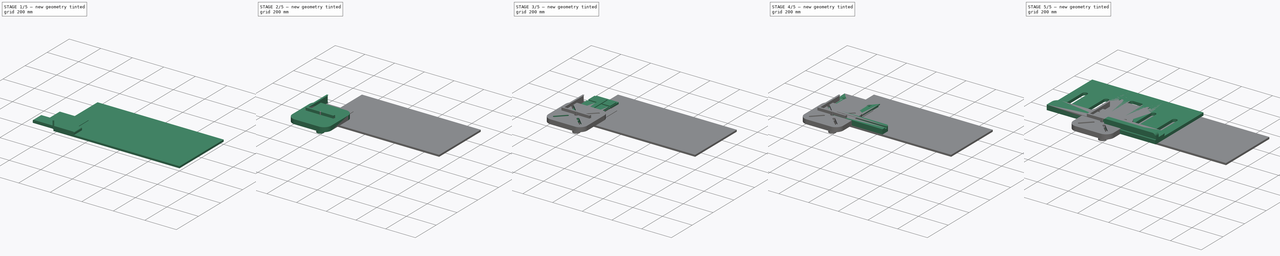
[diagram: build sequence overview — one tinted view per stage of 5, left to right]
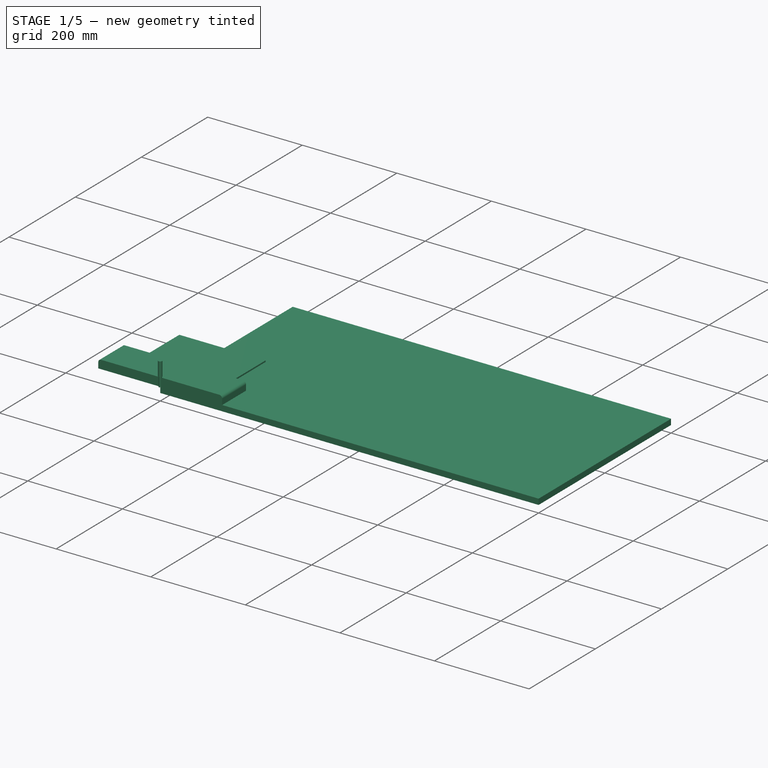
[diagram: stage 1 of 5 — iso view after this stage's code; geometry added in this stage tinted green]
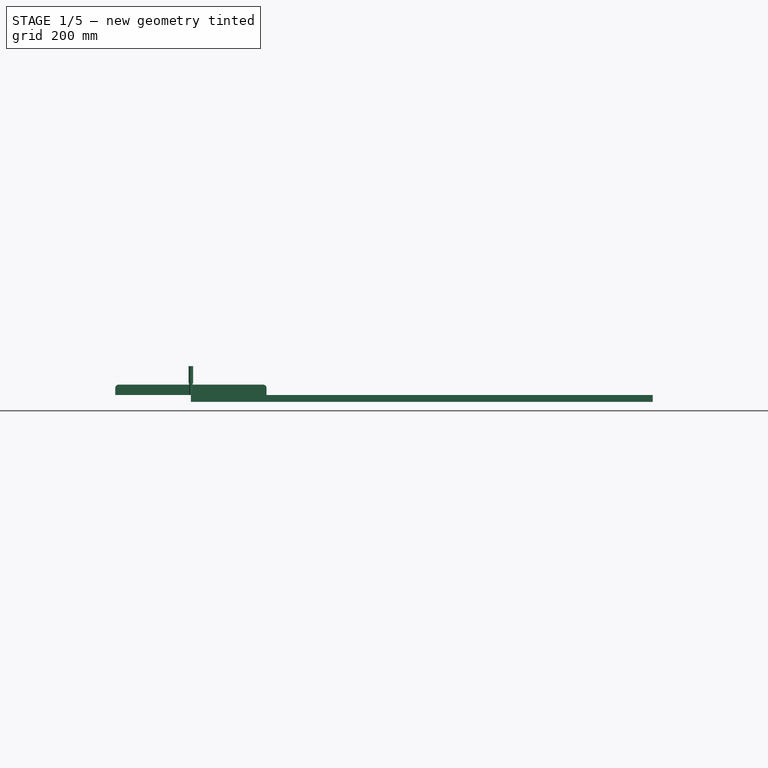
[diagram: stage 1 of 5 — front view after this stage's code; geometry added in this stage tinted green]
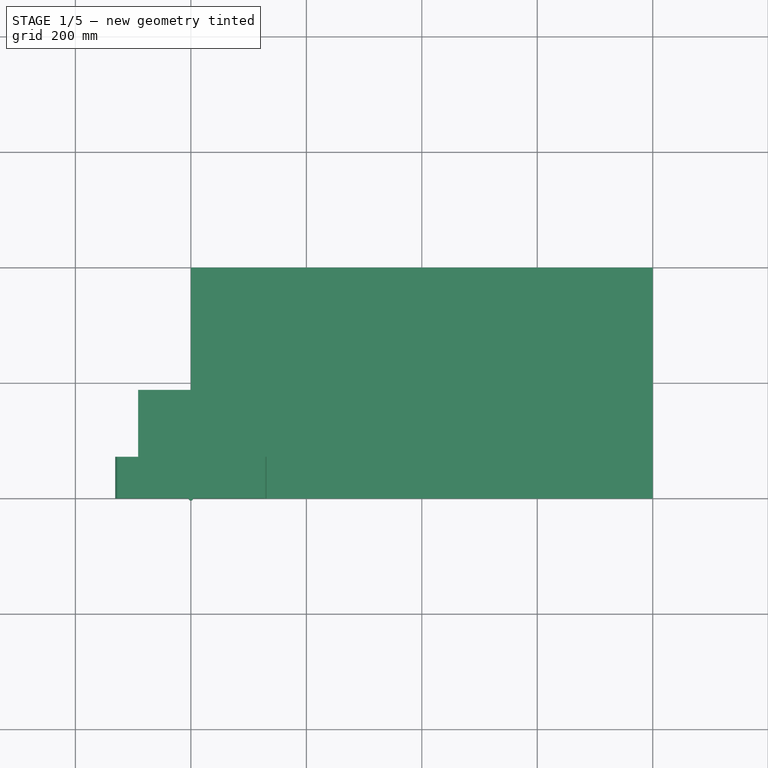
[diagram: stage 1 of 5 — top view after this stage's code; geometry added in this stage tinted green]
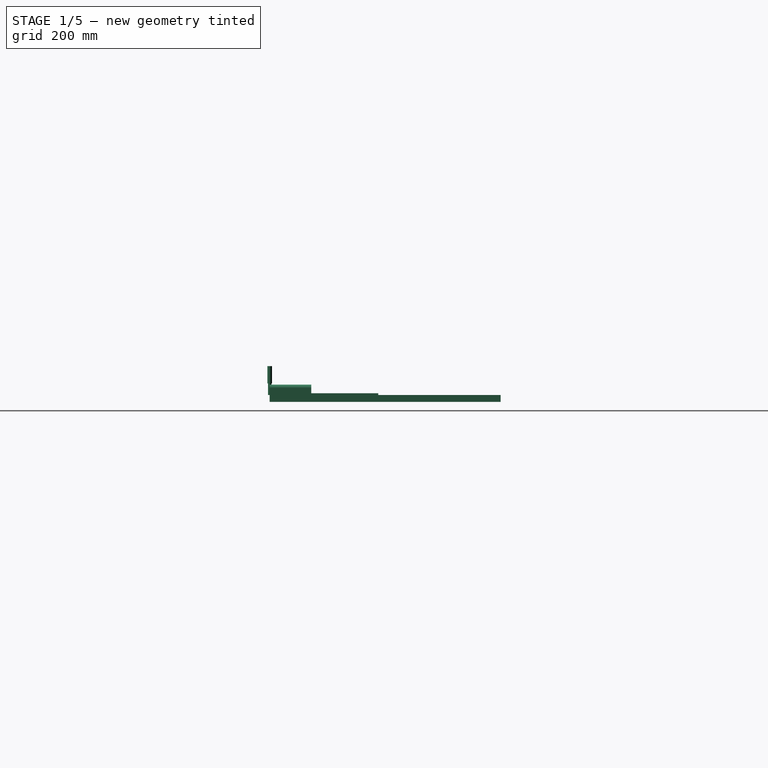
[diagram: stage 1 of 5 — right view after this stage's code; geometry added in this stage tinted green]
FCSTD DOCUMENT  (FreeCAD 0.22R36874 (Git))
Label: insert_drill_press_table
License: All rights reserved
LicenseURL: http://en.wikipedia.org/wiki/All_rights_reserved
objects: Sketcher::SketchObject×58, PartDesign::Pocket×35, PartDesign::Pad×21, PartDesign::Body×21, Path::FeaturePython×7, PartDesign::Mirrored×4, App::Part×4, PartDesign::FeatureBase×3, PartDesign::PolarPattern×3, Part::FeaturePython×3, App::DocumentObjectGroup×3, Spreadsheet::Sheet×1, PartDesign::Fillet×1, App::FeaturePython×1
note: 208 computed .brp shape members not serialized (recipe doc carries the construction recipe); baked Part::Feature solids carry a one-line shape summary decoded from their .brp

FEATURE [Sketcher::SketchObject] Sketch008
  AttachmentSupport = -> [XY_Plane004]
  FullyConstrained = true
  MapMode = 5
  expr: Constraints[12] = 3 * Spreadsheet.table_radius
  expr: Constraints[16] = Spreadsheet.insert_depth
  expr: Constraints[17] = Spreadsheet.insert_width
  sketch-geometry (8):
    g0: LineSegment StartX=-27 StartY=100 StartZ=0 EndX=27 EndY=100 EndZ=0
    g1: LineSegment StartX=45 StartY=82 StartZ=0 EndX=45 EndY=-82 EndZ=0
    g2: LineSegment StartX=27 StartY=-100 StartZ=0 EndX=-27 EndY=-100 EndZ=0
    g3: LineSegment StartX=-45 StartY=-82 StartZ=0 EndX=-45 EndY=82 EndZ=0
    g4: ArcOfCircle CenterX=-27 CenterY=-82 CenterZ=0 NormalX=0 NormalY=0 NormalZ=1 AngleXU=0 Radius=18 StartAngle=3.14159 EndAngle=4.71239
    g5: ArcOfCircle CenterX=27 CenterY=-82 CenterZ=0 NormalX=0 NormalY=0 NormalZ=1 AngleXU=0 Radius=18 StartAngle=4.71239 EndAngle=6.28319
    g6: ArcOfCircle CenterX=27 CenterY=82 CenterZ=0 NormalX=0 NormalY=0 NormalZ=1 AngleXU=0 Radius=18 StartAngle=0 EndAngle=1.5708
    g7: ArcOfCircle CenterX=-27 CenterY=82 CenterZ=0 NormalX=0 NormalY=0 NormalZ=1 AngleXU=0 Radius=18 StartAngle=1.5708 EndAngle=3.14159
  constraints (19):
    c: Horizontal(g0)
    c: Horizontal(g2)
    c: Vertical(g1)
    c: Vertical(g3)
    c: Tangent(g3,g4) = 1.5708
    c: Tangent(g2,g4) = 1.5708
    c: Tangent(g2,g5) = 1.5708
    c: Tangent(g1,g5) = 1.5708
    c: Tangent(g1,g6) = 1.5708
    c: Tangent(g0,g6) = 1.5708
    c: Tangent(g0,g7) = 1.5708
    c: Tangent(g3,g7) = 1.5708
    c: Radius(g7) = 18
    c: Equal(g7,g6)
    c: Equal(g6,g5)
    c: Equal(g5,g4)
    c: DistanceY(g2,g0) = 200
    c: DistanceX(g3,g1) = 90
    c: Symmetric(g3,g1,g-1)
FEATURE [PartDesign::Pad] Pad003
  Direction = (0,0,1)
  Length = 12
  Length2 = 10
  Profile = -> Sketch008
  ReferenceAxis = -> Sketch008 [N_Axis]
  Suppressed = false
  Type = 0
  expr: Length = Spreadsheet.ply_12
FEATURE [PartDesign::Body] Body014  label="iron_table_insert"
  Group = -> [Sketch044,Pad016,Sketch045,Pocket028,Sketch046,Pocket029]
  Origin = -> Origin018
  Placement = pos=(0,210,-90) rot=(1,0,0;3.14159rad)
  Tip = -> Pocket029
FEATURE [Sketcher::SketchObject] Sketch047
  AttachmentSupport = -> [XY_Plane020]
  FullyConstrained = true
  MapMode = 5
  expr: Constraints[10] = Spreadsheet.drawer_total_height
  expr: Constraints[9] = Spreadsheet.drawer_total_width - 2 * (Spreadsheet.ply_12 - Spreadsheet.ply_3)
  sketch-geometry (4):
    g0: LineSegment StartX=-91.3 StartY=48 StartZ=0 EndX=91.3 EndY=48 EndZ=0
    g1: LineSegment StartX=91.3 StartY=48 StartZ=0 EndX=91.3 EndY=0 EndZ=0
    g2: LineSegment StartX=91.3 StartY=0 StartZ=0 EndX=-91.3 EndY=0 EndZ=0
    g3: LineSegment StartX=-91.3 StartY=0 StartZ=0 EndX=-91.3 EndY=48 EndZ=0
  constraints (11):
    c: Coincident(g0,g1)
    c: Coincident(g1,g2)
    c: Coincident(g2,g3)
    c: Coincident(g3,g0)
    c: Horizontal(g0)
    c: Horizontal(g2)
    c: Vertical(g1)
    c: Vertical(g3)
    c: Symmetric(g2,g1,g-1)
    c: DistanceX(g0,g0) = 182.6
    c: DistanceY(g3,g3) = 48
FEATURE [PartDesign::Pad] Pad017
  Direction = (0,0,1)
  Length = 12
  Length2 = 10
  Profile = -> Sketch047
  ReferenceAxis = -> Sketch047 [N_Axis]
  Suppressed = false
  Type = 0
  expr: Length = Spreadsheet.ply_12
FEATURE [Sketcher::SketchObject] Sketch048
  AttachmentSupport = -> [Pad017]
  FullyConstrained = true
  MapMode = 5
  Placement = pos=(0,0,12) rot=(0,0,1;0rad)
  expr: Constraints[10] = (Spreadsheet.drawer_total_width - 2 * (Spreadsheet.ply_12 - Spreadsheet.ply_3)) / 2
  expr: Constraints[11] = Spreadsheet.ply_3
  expr: Constraints[9] = Spreadsheet.drawer_total_height
  sketch-geometry (4):
    g0: LineSegment StartX=-91.3 StartY=48 StartZ=0 EndX=-88.3 EndY=48 EndZ=0
    g1: LineSegment StartX=-88.3 StartY=48 StartZ=0 EndX=-88.3 EndY=0 EndZ=0
    g2: LineSegment StartX=-88.3 StartY=0 StartZ=0 EndX=-91.3 EndY=0 EndZ=0
    g3: LineSegment StartX=-91.3 StartY=0 StartZ=0 EndX=-91.3 EndY=48 EndZ=0
  constraints (12):
    c: Coincident(g0,g1)
    c: Coincident(g1,g2)
    c: Coincident(g2,g3)
    c: Coincident(g3,g0)
    c: Horizontal(g0)
    c: Horizontal(g2)
    c: Vertical(g1)
    c: Vertical(g3)
    c: PointOnObject(g1,g-1)
    c: DistanceY(g3,g3) = 48
    c: DistanceX(g2,g-1) = 91.3
    c: DistanceX(g0,g0) = 3
FEATURE [PartDesign::Pocket] Pocket030
  BaseFeature = -> Pad017
  Direction = (0,0,-1)
  Length = 9
  Length2 = 5
  Profile = -> Sketch048
  ReferenceAxis = -> Sketch048 [N_Axis]
  Suppressed = false
  Type = 0
  expr: Length = Spreadsheet.ply_12 - Spreadsheet.ply_3
FEATURE [PartDesign::Mirrored] Mirrored002
  BaseFeature = -> Pocket030
  MirrorPlane = -> Sketch048 [V_Axis]
  Originals = -> [Pocket030]
  Suppressed = false
FEATURE [Sketcher::SketchObject] Sketch049
  AttachmentSupport = -> [Mirrored002]
  FullyConstrained = true
  MapMode = 5
  Placement = pos=(0,0,0) rot=(1,0,0;3.14159rad)
  expr: Constraints[10] = <<Spreadsheet>>.ply_3
  expr: Constraints[11] = (Spreadsheet.drawer_total_width - 2 * (Spreadsheet.ply_12 - Spreadsheet.ply_3)) / 2
  expr: Constraints[8] = Spreadsheet.ply_3
  expr: Constraints[9] = (Spreadsheet.drawer_total_width - 2 * (Spreadsheet.ply_12 - Spreadsheet.ply_3)) / 2
  sketch-geometry (4):
    g0: LineSegment StartX=-91.3 StartY=-3 StartZ=0 EndX=91.3 EndY=-3 EndZ=0
    g1: LineSegment StartX=91.3 StartY=-3 StartZ=0 EndX=91.3 EndY=-6 EndZ=0
    g2: LineSegment StartX=91.3 StartY=-6 StartZ=0 EndX=-91.3 EndY=-6 EndZ=0
    g3: LineSegment StartX=-91.3 StartY=-6 StartZ=0 EndX=-91.3 EndY=-3 EndZ=0
  constraints (12):
    c: Coincident(g0,g1)
    c: Coincident(g1,g2)
    c: Coincident(g2,g3)
    c: Coincident(g3,g0)
    c: Horizontal(g0)
    c: Horizontal(g2)
    c: Vertical(g1)
    c: Vertical(g3)
    c: DistanceY(g3,g3) = 3
    c: DistanceX(g0,g-1) = 91.3
    c: DistanceY(g0,g-1) = 3
    c: DistanceX(g-1,g0) = 91.3
FEATURE [PartDesign::Pocket] Pocket031
  BaseFeature = -> Mirrored002
  Direction = (0,0,1)
  Length = 3
  Length2 = 5
  Profile = -> Sketch049
  ReferenceAxis = -> Sketch049 [N_Axis]
  Suppressed = false
  Type = 0
  expr: Length = Spreadsheet.ply_3
FEATURE [PartDesign::Body] Body017  label="drawer_right_side"
  Group = -> [Clone001]
  Origin = -> Origin021
  Placement = pos=(0,206,0) rot=(0,0,1;3.14159rad)
  Tip = -> Clone001
  expr: .Placement.Base.y = Spreadsheet.drawer_total_depth
FEATURE [Sketcher::SketchObject] Sketch052
  AttachmentSupport = -> [XY_Plane024]
  FullyConstrained = true
  MapMode = 5
  expr: Constraints[10] = Spreadsheet.drawer_total_depth - 2 * (Spreadsheet.ply_12 - Spreadsheet.ply_3)
  expr: Constraints[9] = Spreadsheet.drawer_total_width - 2 * (Spreadsheet.ply_12 - Spreadsheet.ply_3)
  sketch-geometry (4):
    g0: LineSegment StartX=-91.3 StartY=188 StartZ=0 EndX=91.3 EndY=188 EndZ=0
    g1: LineSegment StartX=91.3 StartY=188 StartZ=0 EndX=91.3 EndY=0 EndZ=0
    g2: LineSegment StartX=91.3 StartY=0 StartZ=0 EndX=-91.3 EndY=0 EndZ=0
    g3: LineSegment StartX=-91.3 StartY=0 StartZ=0 EndX=-91.3 EndY=188 EndZ=0
  constraints (11):
    c: Coincident(g0,g1)
    c: Coincident(g1,g2)
    c: Coincident(g2,g3)
    c: Coincident(g3,g0)
    c: Horizontal(g0)
    c: Horizontal(g2)
    c: Vertical(g1)
    c: Vertical(g3)
    c: Symmetric(g2,g1,g-1)
    c: DistanceX(g0,g0) = 182.6
    c: DistanceY(g1,g1) = 188
FEATURE [PartDesign::Pad] Pad019
  Direction = (0,0,1)
  Length = 3
  Length2 = 10
  Profile = -> Sketch052
  ReferenceAxis = -> Sketch052 [N_Axis]
  Suppressed = false
  Type = 0
  expr: Length = Spreadsheet.ply_3
FEATURE [PartDesign::Body] Body019  label="drawer_bottom"
  Group = -> [Sketch052,Pad019]
  Origin = -> Origin023
  Placement = pos=(0,9,3) rot=(0,0,1;0rad)
  Tip = -> Pad019
  expr: .Placement.Base.y = Spreadsheet.ply_12 - Spreadsheet.ply_3
  expr: .Placement.Base.z = Spreadsheet.ply_3
FEATURE [Sketcher::SketchObject] Sketch053
  AttachmentSupport = -> [XY_Plane025]
  FullyConstrained = true
  MapMode = 5
  expr: Constraints[10] = Spreadsheet.base_width
  expr: Constraints[9] = Spreadsheet.base_height - Spreadsheet.ply_3
  sketch-geometry (4):
    g0: LineSegment StartX=-131 StartY=72 StartZ=0 EndX=131 EndY=72 EndZ=0
    g1: LineSegment StartX=131 StartY=72 StartZ=0 EndX=131 EndY=0 EndZ=0
    g2: LineSegment StartX=131 StartY=0 StartZ=0 EndX=-131 EndY=0 EndZ=0
    g3: LineSegment StartX=-131 StartY=0 StartZ=0 EndX=-131 EndY=72 EndZ=0
  constraints (11):
    c: Coincident(g0,g1)
    c: Coincident(g1,g2)
    c: Coincident(g2,g3)
    c: Coincident(g3,g0)
    c: Horizontal(g0)
    c: Horizontal(g2)
    c: Vertical(g1)
    c: Vertical(g3)
    c: Symmetric(g2,g1,g-1)
    c: DistanceY(g3,g3) = 72
    c: DistanceX(g0,g0) = 262
FEATURE [PartDesign::Pad] Pad020
  Direction = (0,0,1)
  Length = 18
  Length2 = 10
  Profile = -> Sketch053
  ReferenceAxis = -> Sketch053 [N_Axis]
  Suppressed = false
  Type = 0
  expr: Length = Spreadsheet.ply_18
FEATURE [PartDesign::Fillet] Fillet
  Base = -> Pad020 [Edge7,Edge12]
  BaseFeature = -> Pad020
  Radius = 6
  SupportTransform = false
  Suppressed = false
  UseAllEdges = false
  expr: Radius = Spreadsheet.table_radius
FEATURE [PartDesign::Body] Body020  label="drawer_false_front"
  Group = -> [Sketch053,Pad020,Fillet]
  Origin = -> Origin024
  Placement = pos=(0,0,-21) rot=(1,0,0;1.5708rad)
  Tip = -> Fillet
  expr: .Placement.Base.z = -(Spreadsheet.ply_18 + Spreadsheet.ply_3)
FEATURE [Sketcher::SketchObject] Sketch054
  AttachmentSupport = -> [Pocket031]
  FullyConstrained = true
  MapMode = 5
  Placement = pos=(0,0,12) rot=(0,0,1;0rad)
  expr: Constraints[1] = Spreadsheet.drawer_total_height / 2
  sketch-geometry (1):
    g0: Circle CenterX=-70 CenterY=24 CenterZ=0 NormalX=0 NormalY=0 NormalZ=1 AngleXU=0 Radius=1.5
  constraints (3):
    c: DistanceX(g0,g-1) = 70
    c: DistanceY(g-1,g0) = 24
    c: Diameter(g0) = 3
FEATURE [PartDesign::Pocket] Pocket033
  BaseFeature = -> Pocket031
  Direction = (0,0,-1)
  Length = 12
  Length2 = 5
  Profile = -> Sketch054
  ReferenceAxis = -> Sketch054 [N_Axis]
  Suppressed = false
  Type = 0
  expr: Length = Spreadsheet.ply_12
FEATURE [PartDesign::Mirrored] Mirrored003
  BaseFeature = -> Pocket033
  MirrorPlane = -> Sketch054 [V_Axis]
  Originals = -> [Pocket033]
  Suppressed = false
FEATURE [PartDesign::Body] Body018  label="drawer_back"
  Group = -> [Clone002]
  Origin = -> Origin022
  Placement = pos=(0,206,0) rot=(0,0,1;3.14159rad)
  Tip = -> Clone002
  expr: .Placement.Base.y = Spreadsheet.drawer_total_depth
FEATURE [App::Part] Part003  label="drawer"
  Group = -> [Body015,Body016,Body017,Body018,Body019,Body020]
  Origin = -> Origin012
  Placement = pos=(0,62,-54) rot=(0,0,1;0rad)
  expr: .Placement.Base.y = Spreadsheet.ply_12 + 50 mm
  expr: .Placement.Base.z = -Spreadsheet.drawer_total_height - 2 * Spreadsheet.ply_3
FEATURE [Sketcher::SketchObject] Sketch055
  AttachmentSupport = -> [Pad003]
  FullyConstrained = true
  MapMode = 5
  Placement = pos=(0,0,12) rot=(0,0,1;0rad)
  expr: Constraints[2] = 3 / 4 * Spreadsheet.insert_depth / 2
  sketch-geometry (1):
    g0: Circle CenterX=0 CenterY=-75 CenterZ=0 NormalX=0 NormalY=0 NormalZ=1 AngleXU=0 Radius=12
  constraints (3):
    c: PointOnObject(g0,g-2)
    c: Diameter(g0) = 24
    c: DistanceY(g0,g-1) = 75
FEATURE [PartDesign::Pocket] Pocket034
  BaseFeature = -> Pad003
  Direction = (0,0,-1)
  Length = 12
  Length2 = 5
  Profile = -> Sketch055
  ReferenceAxis = -> Sketch055 [N_Axis]
  Suppressed = false
  Type = 0
  expr: Length = Spreadsheet.ply_12
FEATURE [PartDesign::Body] Body003  label="insert"
  Group = -> [Sketch008,Pad003,Sketch055,Pocket034]
  Origin = -> Origin003
  Placement = pos=(0,230,24) rot=(0,0,1;0rad)
  Tip = -> Pocket034
  expr: .Placement.Base.y = 130 mm + Spreadsheet.insert_depth / 2
  expr: .Placement.Base.z = 2 * Spreadsheet.ply_18 - Spreadsheet.ply_12
FEATURE [Sketcher::SketchObject] Sketch056
  AttachmentSupport = -> [Pocket004]
  FullyConstrained = false
  MapMode = 5
  Placement = pos=(0,0,18) rot=(0,0,1;0rad)
  sketch-geometry (1):
    g0: LineSegment StartX=-69.7516 StartY=178.869 StartZ=0 EndX=66.5593 EndY=178.869 EndZ=0
  constraints (1):
    c: Horizontal(g0)
FEATURE [PartDesign::Body] Body001  label="upper_part"
  Group = -> [Sketch002,Pad001,Sketch003,Pocket001,Sketch004,Pocket002,Sketch007,Pocket004,Sketch056]
  Origin = -> Origin001
  Placement = pos=(0,0,18) rot=(0,0,1;0rad)
  Tip = -> Pocket004
  expr: .Placement.Base.z = Spreadsheet.ply_18
FEATURE [Sketcher::SketchObject] Sketch057
  AttachmentSupport = -> [Pocket003]
  FullyConstrained = false
  MapMode = 5
  Placement = pos=(0,0,18) rot=(0,0,1;0rad)
  sketch-geometry (5):
    g0: LineSegment StartX=-382.642 StartY=125 StartZ=0 EndX=-59.7649 EndY=125 EndZ=0
    g1: LineSegment StartX=-59.7649 StartY=204.647 StartZ=0 EndX=-59.7649 EndY=125 EndZ=0
    g2: LineSegment StartX=-59.7649 StartY=204.647 StartZ=0 EndX=60 EndY=204.647 EndZ=0
    g3: LineSegment StartX=60 StartY=204.647 StartZ=0 EndX=60 EndY=125 EndZ=0
    g4: LineSegment StartX=60 StartY=125 StartZ=0 EndX=401.368 EndY=125 EndZ=0
  constraints (6):
    c: Coincident(g1,g0)
    c: Coincident(g2,g1)
    c: Coincident(g3,g2)
    c: Vertical(g3)
    c: Coincident(g4,g3)
    c: Horizontal(g4)
FEATURE [PartDesign::Body] Body  label="bottom_part"
  Group = -> [Sketch,Pad,Sketch001,Pocket,Sketch006,Pocket003,Sketch057]
  Origin = -> Origin
  Tip = -> Pocket003
FEATURE [App::Part] Part  label="table"
  Group = -> [Body,Body001]
  Origin = -> Origin005
FEATURE [App::FeaturePython] SetupSheet  # Path/CAM operation (typed FeaturePython)
  ClearanceHeightExpression = OpStockZMax+SetupSheet.ClearanceHeightOffset
  ClearanceHeightOffset = 5
  CoolantMode = 0
  CoolantModes = None | Flood | Mist
  FinalDepthExpression = OpFinalDepth
  HorizRapid = 0
  SafeHeightExpression = OpStockZMax+SetupSheet.SafeHeightOffset
  SafeHeightOffset = 3
  StartDepthExpression = OpStartDepth
  StepDownExpression = OpToolDiameter
  VertRapid = 0
FEATURE [Part::FeaturePython] Clone003  label="Model-insert"  # Draft clone (typed FeaturePython)
  AttacherType = Attacher::AttachEngine3D
  Fuse = false
  Objects = -> [Body003]
  PathResource = Model
  Placement = pos=(110,55,-12) rot=(0,0,1;1.5708rad)
  Scale = (1,1,1)
FEATURE [App::DocumentObjectGroup] Model
  Group = -> [Clone003]
FEATURE [Part::FeaturePython] ToolBit  label="Endmill D=6, H=20, S=8"  # Path/CAM toolbit (typed FeaturePython)
  BitPropertyNames = Chipload | CuttingEdgeHeight | Diameter | Flutes | Length | Material | ShankDiameter | SpindleDirection
  BitShape = <path>
  Chipload = 0
  CuttingEdgeHeight = 20
  Diameter = 6
  Flutes = 2
  Length = 50
  Material = 0
  ShankDiameter = 8
  ShapeName = endmill
  SpindleDirection = 0
FEATURE [Path::FeaturePython] TC__Endmill_D_6__H_20__S_8  label="TC: Endmill D=6, H=20, S=8"  # Path/CAM operation (typed FeaturePython)
  HorizFeed = 15
  HorizRapid = 0
  SpindleDir = 0
  SpindleSpeed = 0
  Tool = -> ToolBit
  ToolNumber = 16
  VertFeed = 1
  VertRapid = 0
  expr: HorizRapid = SetupSheet.HorizRapid
  expr: VertRapid = SetupSheet.VertRapid
FEATURE [App::DocumentObjectGroup] Tools
  Group = -> [TC__Endmill_D_6__H_20__S_8]
FEATURE [Part::FeaturePython] Stock001  # WARN: FeaturePython — macro-defined, semantics opaque (R4)
  Height = 12
  Length = 800
  Placement = pos=(0,0,-12) rot=(0,0,1;0rad)
  StockType = CreateBox
  Width = 400
FEATURE [Path::FeaturePython] Profile  # Path/CAM operation (typed FeaturePython)
  Active = true
  AreaParams:
    Tolerance = 1e-07
    FitArcs = True
    Simplify = False
    CleanDistance = 0.0
    Accuracy = 0.01
    Unit = 1.0
    MinArcPoints = 4
    MaxArcPoints = 100
    ClipperScale = 10000000.0
    Fill = 0
    Coplanar = 0
    Reorient = True
    Outline = False
    Explode = False
    OpenMode = 0
    Deflection = 0.01
    SubjectFill = 0
    ClipFill = 0
    Offset = 2.6
    ExtraPass = 0
    Stepover = 0.0
    LastStepover = 0.0
    JoinType = 0
    EndType = 0
    MiterLimit = 2.0
    RoundPrecision = 0.0
    PocketMode = 0
    ToolRadius = 1.0
    PocketExtraOffset = 0.0
    PocketStepover = 0.0
    PocketLastStepover = 0.0
    FromCenter = False
    Angle = 45.0
    AngleShift = 0.0
    Shift = 0.0
    Thicken = False
    SectionCount = -1
    Stepdown = 1.0
    SectionOffset = 0.0
    SectionTolerance = 1e-06
    SectionMode = 2
    Project = False
  ClearanceHeight = 5
  CoolantMode = 0
  CycleTime = 00:03:55
  Direction = 0
  FinalDepth = -12.5
  HandleMultipleFeatures = 0
  JoinType = 0
  MiterLimit = 0.1
  OffsetExtra = -0.4
  OpFinalDepth = -12
  OpStartDepth = 0
  OpStockZMax = 0
  OpStockZMin = -12
  OpToolDiameter = 6
  PathParams = {'orientation': 1, 'feedrate': 15.0, 'feedrate_v': 1.0, 'verbose': True, 'resume_height': 3.0, 'retraction': 5.0, 'return_end': True, 'preamble': False}
  SafeHeight = 3
  Side = 0
  SplitArcs = false
  StartDepth = 0
  StartPoint = (0,0,0)
  StepDown = 2.5
  ToolController = -> TC__Endmill_D_6__H_20__S_8
  UseComp = true
  UseStartPoint = false
  processCircles = false
  processHoles = false
  processPerimeter = true
  expr: ClearanceHeight = OpStockZMax + SetupSheet.ClearanceHeightOffset
  expr: FinalDepth = OpFinalDepth - 0.5 mm
  expr: SafeHeight = OpStockZMax + SetupSheet.SafeHeightOffset
  expr: StartDepth = OpStartDepth
  expr: StepDown = 2.5
FEATURE [Path::FeaturePython] Pocket_Shape  # Path/CAM operation (typed FeaturePython)
  Active = true
  AreaParams:
    Tolerance = 1e-07
    FitArcs = True
    Simplify = False
    CleanDistance = 0.0
    Accuracy = 0.01
    Unit = 1.0
    MinArcPoints = 4
    MaxArcPoints = 100
    ClipperScale = 10000000.0
    Fill = 0
    Coplanar = 0
    Reorient = True
    Outline = False
    Explode = False
    OpenMode = 0
    Deflection = 0.01
    SubjectFill = 0
    ClipFill = 0
    Offset = 0.0
    ExtraPass = 0
    Stepover = 0.0
    LastStepover = 0.0
    JoinType = 0
    EndType = 0
    MiterLimit = 2.0
    RoundPrecision = 0.0
    PocketMode = 4
    ToolRadius = 3.0
    PocketExtraOffset = 0.0
    PocketStepover = 4.800000000000001
    PocketLastStepover = 0.0
    FromCenter = True
    Angle = 45.0
    AngleShift = 0.0
    Shift = 0.0
    Thicken = False
    SectionCount = -1
    Stepdown = 1.0
    SectionOffset = 0.0
    SectionTolerance = 1e-06
    SectionMode = 2
    Project = False
  Base = -> [Clone003]
  ClearanceHeight = 5
  CoolantMode = 0
  CutMode = 0
  CycleTime = 00:05:08
  ExtensionCorners = true
  ExtensionLengthDefault = 3
  ExtraOffset = 0
  FinalDepth = -12.5
  FinishDepth = 0
  KeepToolDown = false
  MinTravel = false
  OffsetPattern = 2
  OpFinalDepth = -12
  OpStartDepth = 0
  OpStockZMax = 0
  OpStockZMin = -12
  OpToolDiameter = 6
  PathParams = {'orientation': 1, 'feedrate': 15.0, 'feedrate_v': 1.0, 'verbose': True, 'resume_height': 3.0, 'retraction': 5.0, 'return_end': True, 'preamble': False, 'sort_mode': 0}
  PocketLastStepOver = 0
  SafeHeight = 3
  SplitArcs = false
  StartAt = 0
  StartDepth = 0
  StartPoint = (0,0,0)
  StepDown = 2.5
  StepOver = 80
  ToolController = -> TC__Endmill_D_6__H_20__S_8
  UseOutline = false
  UseRestMachining = false
  UseStartPoint = false
  ZigZagAngle = 45
  expr: ClearanceHeight = OpStockZMax + SetupSheet.ClearanceHeightOffset
  expr: ExtensionLengthDefault = OpToolDiameter / 2
  expr: FinalDepth = OpFinalDepth - 0.5 mm
  expr: SafeHeight = OpStockZMax + SetupSheet.SafeHeightOffset
  expr: StartDepth = OpStartDepth
  expr: StepDown = 2.5
FEATURE [Path::FeaturePython] DressupTag  # Path/CAM operation (typed FeaturePython)
  Angle = 45
  Base = -> Profile
  Disabled = [1,2,4,5]
  Height = 4
  Positions = (6) [(212.599,55.0425,-12.5),(151.064,7.40104,-12.5),(69.0213,7.40035,-12.5),(7.4007,54.9575,-12.5),(68.9362,102.599,-12.5),(150.979,102.6,-12.5)]
  Radius = 0
  SegmentationFactor = 50
  Width = 16.41
FEATURE [Path::FeaturePython] Array  # Path/CAM operation (typed FeaturePython)
  Active = true
  Angle = 0
  Base = -> [Pocket_Shape,DressupTag]
  Centre = (0,0,0)
  Copies = 2
  CopiesX = 0
  CopiesY = 0
  JitterMagnitude = (0,0,0)
  JitterPercent = 0
  JitterSeed = 0
  Offset = (220,0,0)
  SwapDirection = false
  ToolController = -> TC__Endmill_D_6__H_20__S_8
  Type = 0
FEATURE [Path::FeaturePython] Array001  # Path/CAM operation (typed FeaturePython)
  Active = true
  Angle = 0
  Base = -> [Pocket_Shape,DressupTag,Array]
  Centre = (0,0,0)
  Copies = 2
  CopiesX = 0
  CopiesY = 0
  JitterMagnitude = (0,0,0)
  JitterPercent = 0
  JitterSeed = 0
  Offset = (0,98,0)
  SwapDirection = false
  ToolController = -> TC__Endmill_D_6__H_20__S_8
  Type = 0
FEATURE [App::DocumentObjectGroup] Operations
  Group = -> [Pocket_Shape,DressupTag,Array,Array001]
FEATURE [Path::FeaturePython] Job  # Path/CAM operation (typed FeaturePython)
  CycleTime = 00:09:03
  Fixtures = G54
  GeometryTolerance = 0.01
  JobType = 0
  Model = -> Model
  Operations = -> Operations
  OrderOutputBy = 0
  PostProcessor = 3
  PostProcessorOutputFile = %D/%d.gcode
  SetupSheet = -> SetupSheet
  SplitOutput = false
  Stock = -> Stock001
  Tools = -> Tools
note: 1 file-system path scrubbed to <path> (originals preserved in the JSON sidecar)
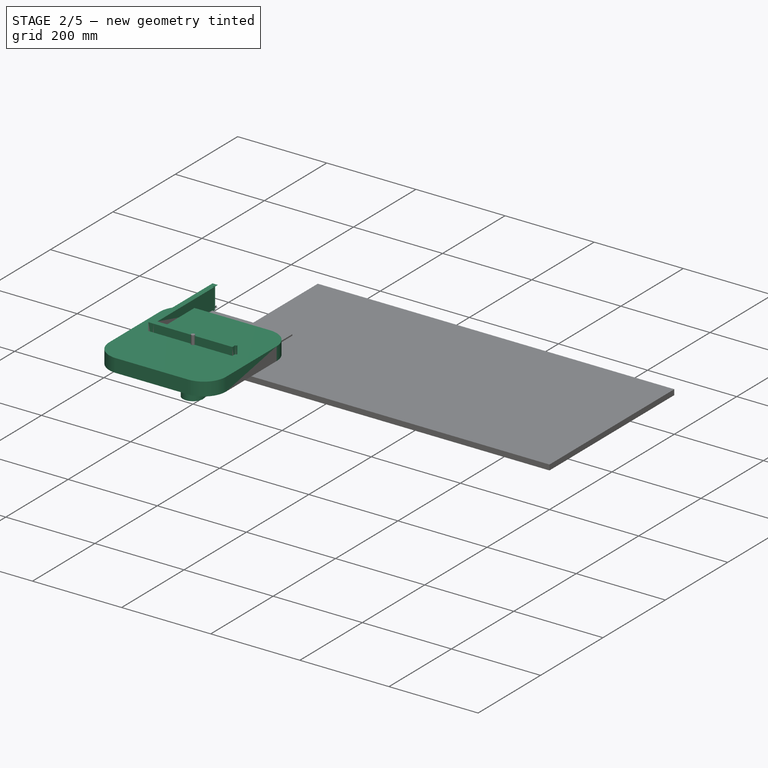
[diagram: stage 2 of 5 — iso view after this stage's code; geometry added in this stage tinted green]
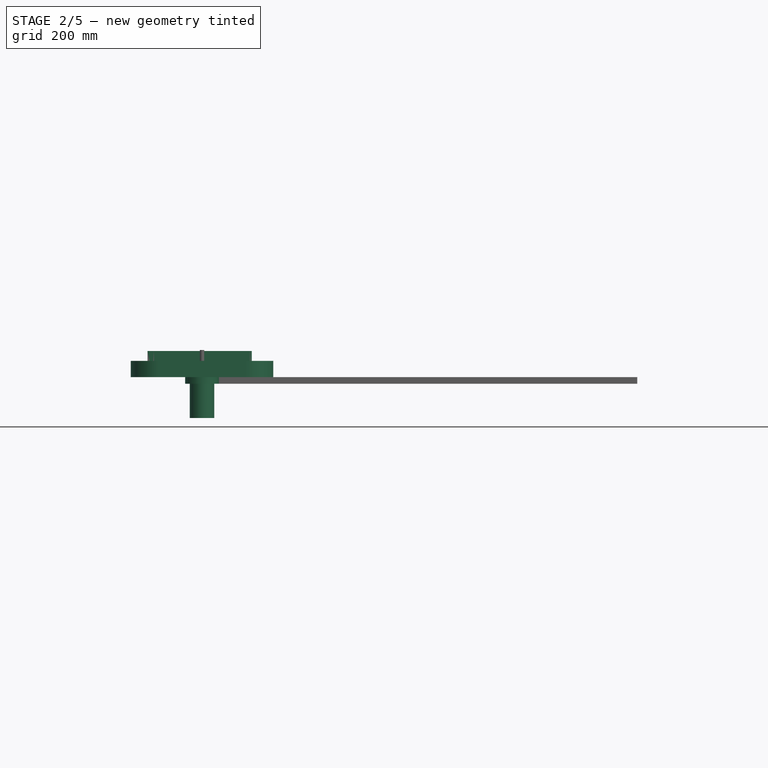
[diagram: stage 2 of 5 — front view after this stage's code; geometry added in this stage tinted green]
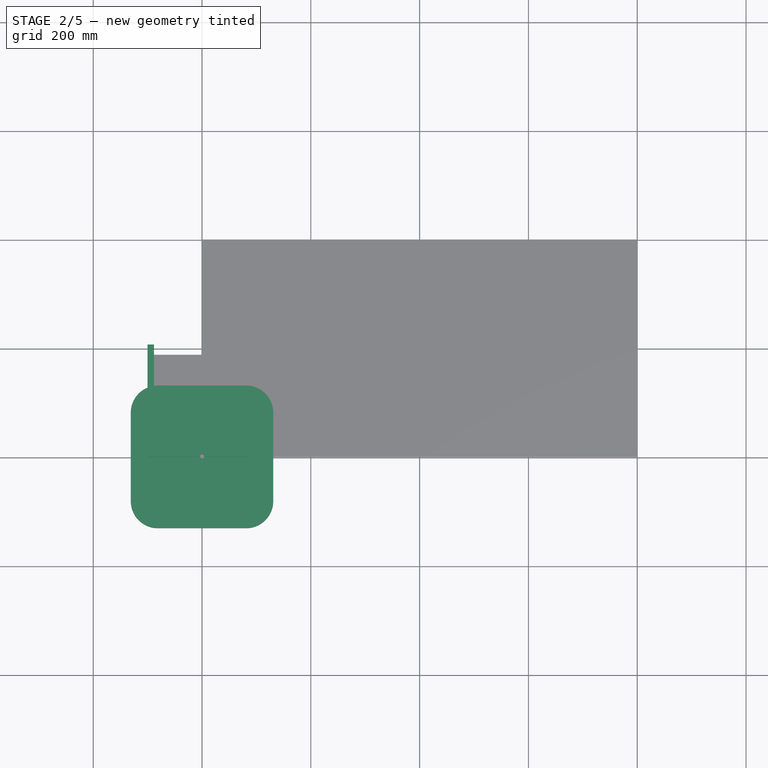
[diagram: stage 2 of 5 — top view after this stage's code; geometry added in this stage tinted green]
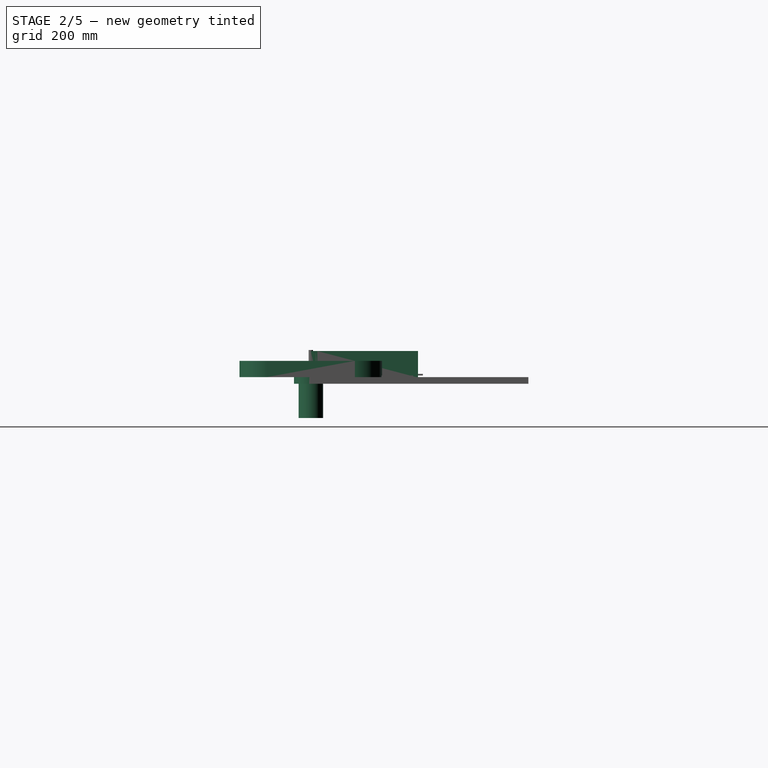
[diagram: stage 2 of 5 — right view after this stage's code; geometry added in this stage tinted green]
FEATURE [Sketcher::SketchObject] Sketch005
  AttachmentSupport = -> [XY_Plane003]
  FullyConstrained = true
  MapMode = 5
  expr: Constraints[26] = Spreadsheet.iron_cast_table
  expr: Constraints[5] = Spreadsheet.iron_cast_table
  sketch-geometry (12):
    g0: LineSegment StartX=-81 StartY=131 StartZ=0 EndX=81 EndY=131 EndZ=0
    g1: LineSegment StartX=131 StartY=81 StartZ=0 EndX=131 EndY=-81 EndZ=0
    g2: LineSegment StartX=81 StartY=-131 StartZ=0 EndX=-81 EndY=-131 EndZ=0
    g3: LineSegment StartX=-131 StartY=-81 StartZ=0 EndX=-131 EndY=81 EndZ=0
    g4: ArcOfCircle CenterX=-81 CenterY=81 CenterZ=0 NormalX=0 NormalY=0 NormalZ=1 AngleXU=0 Radius=50 StartAngle=1.5708 EndAngle=3.14159
    g5: GeomPoint X=-131 Y=131 Z=0
    g6: ArcOfCircle CenterX=81 CenterY=81 CenterZ=0 NormalX=0 NormalY=0 NormalZ=1 AngleXU=0 Radius=50 StartAngle=0 EndAngle=1.5708
    g7: GeomPoint X=131 Y=131 Z=0
    g8: ArcOfCircle CenterX=81 CenterY=-81 CenterZ=0 NormalX=0 NormalY=0 NormalZ=1 AngleXU=0 Radius=50 StartAngle=4.71239 EndAngle=6.28319
    g9: GeomPoint X=131 Y=-131 Z=0
    g10: ArcOfCircle CenterX=-81 CenterY=-81 CenterZ=0 NormalX=0 NormalY=0 NormalZ=1 AngleXU=0 Radius=50 StartAngle=3.14159 EndAngle=4.71239
    g11: GeomPoint X=-131 Y=-131 Z=0
  constraints (27):
    c: Horizontal(g0)
    c: Horizontal(g2)
    c: Vertical(g1)
    c: Vertical(g3)
    c: Symmetric(g5,g9,g-1)
    c: DistanceX(g11,g9) = 262
    c: PointOnObject(g5,g3)
    c: PointOnObject(g5,g0)
    c: Tangent(g3,g4) = 1.5708
    c: Tangent(g0,g4) = 1.5708
    c: PointOnObject(g7,g0)
    c: PointOnObject(g7,g1)
    c: Tangent(g0,g6) = 1.5708
    c: Tangent(g1,g6) = 1.5708
    c: PointOnObject(g9,g1)
    c: PointOnObject(g9,g2)
    c: Tangent(g1,g8) = 1.5708
    c: Tangent(g2,g8) = 1.5708
    c: PointOnObject(g11,g2)
    c: PointOnObject(g11,g3)
    c: Tangent(g2,g10) = 1.5708
    c: Tangent(g3,g10) = 1.5708
    c: Radius(g4) = 50
    c: Equal(g4,g6)
    c: Equal(g6,g8)
    c: Equal(g8,g10)
    c: DistanceY(g2,g0) = 262
FEATURE [PartDesign::Pad] Pad002
  Direction = (0,0,1)
  Length = 30
  Length2 = 10
  Profile = -> Sketch005
  ReferenceAxis = -> Sketch005 [N_Axis]
  Suppressed = false
  Type = 0
FEATURE [PartDesign::Body] Body013  label="base_top"
  Group = -> [Sketch036,Pad012]
  Origin = -> Origin017
  Placement = pos=(0,0,72) rot=(0,0,1;0rad)
  Tip = -> Pad012
  expr: .Placement.Base.z = Spreadsheet.base_height - Spreadsheet.ply_3
FEATURE [App::Part] Part002  label="base"
  Group = -> [Body007,Body008,Body009,Body010,Body011,Body012,Body013]
  Origin = -> Origin009
  Placement = pos=(0,62,-75) rot=(0,0,1;0rad)
  expr: .Placement.Base.y = Spreadsheet.ply_12 + 50 mm
  expr: .Placement.Base.z = -Spreadsheet.base_height
FEATURE [Sketcher::SketchObject] Sketch037  label="iron_table_bottom"
  AttachmentSupport = -> [Pad002]
  FullyConstrained = true
  MapMode = 5
  Placement = pos=(0,0,0) rot=(1,0,0;3.14159rad)
  expr: .Constraints.iron_table_inner_length = (Spreadsheet.iron_cast_table - 30 mm) / 2
  expr: .Constraints.iron_table_inner_radius = 50 - 10
  expr: Constraints[7] = (Spreadsheet.iron_cast_table - 30 mm) / 2
  sketch-geometry (6):
    g0: LineSegment StartX=-81 StartY=121 StartZ=0 EndX=-5 EndY=121 EndZ=0
    g1: LineSegment StartX=-5 StartY=121 StartZ=0 EndX=-5 EndY=5 EndZ=0
    g2: LineSegment StartX=-5 StartY=5 StartZ=0 EndX=-121 EndY=5 EndZ=0
    g3: LineSegment StartX=-121 StartY=5 StartZ=0 EndX=-121 EndY=81 EndZ=0
    g4: ArcOfCircle CenterX=-81 CenterY=81 CenterZ=0 NormalX=0 NormalY=0 NormalZ=1 AngleXU=0 Radius=40 StartAngle=1.5708 EndAngle=3.14159
    g5: GeomPoint X=-121 Y=121 Z=0
  constraints (16):
    c: Coincident(g0,g1)
    c: Coincident(g1,g2)
    c: Coincident(g2,g3)
    c: Horizontal(g0)
    c: Horizontal(g2)
    c: Vertical(g1)
    c: Vertical(g3)
    c: DistanceX(g2,g2) = 116
    c: DistanceY(g1,g1) = 116  'iron_table_inner_length'
    c: PointOnObject(g5,g0)
    c: PointOnObject(g5,g3)
    c: Tangent(g0,g4) = 1.5708
    c: Tangent(g3,g4) = 1.5708
    c: Radius(g4) = 40  'iron_table_inner_radius'
    c: DistanceX(g1,g-1) = 5
    c: DistanceY(g-1,g1) = 5
FEATURE [PartDesign::Pocket] Pocket024
  BaseFeature = -> Pad002
  Direction = (0,0,1)
  Length = 23
  Length2 = 5
  Profile = -> Sketch037
  ReferenceAxis = -> Sketch037 [N_Axis]
  Suppressed = false
  Type = 0
  expr: Length = 30 - 7
FEATURE [PartDesign::PolarPattern] PolarPattern
  Angle = 360
  Axis = -> Sketch037 [N_Axis]
  BaseFeature = -> Pocket024
  Mode = 0
  Occurrences = 4
  Offset = 120
  Originals = -> [Pocket024]
  Suppressed = false
FEATURE [Sketcher::SketchObject] Sketch038
  AttachmentOffset = pos=(0,0,-0.1) rot=(0,0,1;0rad)
  AttachmentSupport = -> [PolarPattern]
  FullyConstrained = false
  MapMode = 5
  Placement = pos=(0,0,29.9) rot=(0,0,1;0rad)
  sketch-geometry (7):
    g0: LineSegment StartX=-12.3919 StartY=12.3919 StartZ=0 EndX=99.5363 EndY=124.333 EndZ=0
    g1: LineSegment StartX=12.3373 StartY=-12.3374 StartZ=0 EndX=124.952 EndY=101.341 EndZ=0
    g2: LineSegment StartX=-12.3919 StartY=12.3919 StartZ=0 EndX=12.3373 EndY=-12.3374 EndZ=0
    g3: LineSegment StartX=99.5363 StartY=124.333 StartZ=0 EndX=105.391 EndY=122.551 EndZ=0
    g4: LineSegment StartX=110 StartY=120 StartZ=0 EndX=120 EndY=110 EndZ=0
    g5: LineSegment StartX=120 StartY=110 StartZ=0 EndX=124.952 EndY=101.341 EndZ=0
    g6: LineSegment StartX=105.391 StartY=122.551 StartZ=0 EndX=110 EndY=120 EndZ=0
  constraints (7):
    c: Coincident(g2,g0)
    c: Coincident(g2,g1)
    c: Coincident(g5,g4)
    c: Coincident(g6,g3)
    c: Coincident(g6,g4)
    c: Coincident(g3,g0)
    c: Coincident(g5,g1)
FEATURE [PartDesign::Pad] Pad013
  BaseFeature = -> PolarPattern
  Direction = (0,0,1)
  Length = 12
  Length2 = 10
  Profile = -> Sketch038
  ReferenceAxis = -> Sketch038 [N_Axis]
  Reversed = true
  Suppressed = false
  Type = 0
FEATURE [PartDesign::PolarPattern] PolarPattern001
  Angle = 360
  Axis = -> Sketch038 [N_Axis]
  BaseFeature = -> Pad013
  Mode = 0
  Occurrences = 4
  Offset = 120
  Originals = -> [Pad013]
  Suppressed = false
FEATURE [Sketcher::SketchObject] Sketch039
  AttachmentOffset = pos=(0,0,-0.1) rot=(0,0,1;0rad)
  AttachmentSupport = -> [PolarPattern001]
  FullyConstrained = true
  MapMode = 5
  Placement = pos=(0,0,29.9) rot=(0,0,1;0rad)
  sketch-geometry (1):
    g0: Circle CenterX=0 CenterY=0 CenterZ=0 NormalX=0 NormalY=0 NormalZ=1 AngleXU=0 Radius=31
  constraints (2):
    c: Coincident(g0,g-1)
    c: Diameter(g0) = 62
FEATURE [PartDesign::Pad] Pad014
  BaseFeature = -> PolarPattern001
  Direction = (0,0,1)
  Length = 42
  Length2 = 10
  Profile = -> Sketch039
  ReferenceAxis = -> Sketch039 [N_Axis]
  Reversed = true
  Suppressed = false
  Type = 0
FEATURE [Sketcher::SketchObject] Sketch040
  AttachmentOffset = pos=(0,0,-0.1) rot=(0,0,1;0rad)
  AttachmentSupport = -> [Pad014]
  FullyConstrained = true
  MapMode = 5
  Placement = pos=(0,0,29.9) rot=(0,0,1;0rad)
  sketch-geometry (1):
    g0: Circle CenterX=0 CenterY=0 CenterZ=0 NormalX=0 NormalY=0 NormalZ=1 AngleXU=0 Radius=22.5
  constraints (2):
    c: Coincident(g0,g-1)
    c: Diameter(g0) = 45
FEATURE [PartDesign::Pad] Pad015
  BaseFeature = -> Pad014
  Direction = (0,0,1)
  Length = 105
  Length2 = 10
  Profile = -> Sketch040
  ReferenceAxis = -> Sketch040 [N_Axis]
  Reversed = true
  Suppressed = false
  Type = 0
FEATURE [PartDesign::Body] Body002  label="iron_table"
  Group = -> [Sketch005,Pad002,Sketch037,Pocket024,PolarPattern,Sketch038,Pad013,PolarPattern001,Sketch039,Pad014,Sketch040,Pad015,Sketch041,Pocket025,Sketch042,Pocket026,Sketch043,Pocket027,PolarPattern002]
  Origin = -> Origin002
  Placement = pos=(0,210,-105) rot=(0,0,1;0rad)
  Tip = -> PolarPattern002
  expr: .Placement.Base.z = -(Spreadsheet.base_height + 30 mm)
FEATURE [Sketcher::SketchObject] Sketch044
  AttachmentSupport = -> [XY_Plane019]
  FullyConstrained = true
  MapMode = 5
  expr: Constraints[16] = Spreadsheet.iron_cast_table / 2
  expr: Constraints[17] = Spreadsheet.iron_cast_table / 2
  expr: Constraints[7] = Spreadsheet.iron_cast_table / 2 - 15 mm - 2 mm
  expr: Constraints[8] = Spreadsheet.iron_cast_table / 2 - 15 mm - 2 mm
  sketch-geometry (7):
    g0: GeomPoint X=131 Y=131 Z=0
    g1: LineSegment StartX=5 StartY=5 StartZ=0 EndX=119 EndY=5 EndZ=0
    g2: LineSegment StartX=119 StartY=5 StartZ=0 EndX=119 EndY=81 EndZ=0
    g3: LineSegment StartX=81 StartY=119 StartZ=0 EndX=5 EndY=119 EndZ=0
    g4: LineSegment StartX=5 StartY=119 StartZ=0 EndX=5 EndY=5 EndZ=0
    g5: ArcOfCircle CenterX=81 CenterY=81 CenterZ=0 NormalX=0 NormalY=0 NormalZ=1 AngleXU=0 Radius=38 StartAngle=8e-16 EndAngle=1.5708
    g6: GeomPoint X=119 Y=119 Z=0
  constraints (18):
    c: Coincident(g1,g2)
    c: Coincident(g3,g4)
    c: Coincident(g4,g1)
    c: Horizontal(g1)
    c: Horizontal(g3)
    c: Vertical(g2)
    c: Vertical(g4)
    c: DistanceY(g4,g4) = 114
    c: DistanceX(g1,g1) = 114
    c: PointOnObject(g6,g3)
    c: PointOnObject(g6,g2)
    c: Tangent(g3,g5) = -1.5708
    c: Tangent(g2,g5) = -1.5708
    c: Radius(g5) = 38
    c: DistanceX(g-1,g1) = 5
    c: DistanceY(g-1,g1) = 5
    c: DistanceY(g0) = 131
    c: DistanceX(g0) = 131
FEATURE [PartDesign::Pad] Pad016
  Direction = (0,0,1)
  Length = 24
  Length2 = 10
  Profile = -> Sketch044
  ReferenceAxis = -> Sketch044 [N_Axis]
  Suppressed = false
  Type = 0
  expr: Length = 2 * Spreadsheet.ply_12
FEATURE [Sketcher::SketchObject] Sketch045
  AttachmentSupport = -> [Pad016]
  FullyConstrained = false
  MapMode = 5
  Placement = pos=(0,0,0) rot=(1,0,0;3.14159rad)
  sketch-geometry (5):
    g0: LineSegment StartX=12.3744 StartY=12.3744 StartZ=0 EndX=123.206 EndY=-98.4574 EndZ=0
    g1: LineSegment StartX=-12.3744 StartY=-12.3744 StartZ=0 EndX=98.4574 EndY=-123.206 EndZ=0
    g2: LineSegment StartX=0 StartY=0 StartZ=0 EndX=12.3744 EndY=12.3744 EndZ=0
    g3: LineSegment StartX=0 StartY=0 StartZ=0 EndX=-12.3744 EndY=-12.3744 EndZ=0
    g4: LineSegment StartX=98.4574 StartY=-123.206 StartZ=0 EndX=123.206 EndY=-98.4574 EndZ=0
  constraints (6):
    c: Perpendicular(g2,g0) = 4.71239
    c: Perpendicular(g3,g1) = 1.5708
    c: Coincident(g0,g4)
    c: Coincident(g4,g1)
    c: Distance(g-1,g0) = 17.5
    c: Distance(g1,g-1) = 17.5
FEATURE [PartDesign::Pocket] Pocket028
  BaseFeature = -> Pad016
  Direction = (0,0,1)
  Length = 5
  Length2 = 5
  Profile = -> Sketch045
  ReferenceAxis = -> Sketch045 [N_Axis]
  Suppressed = false
  Type = 0
FEATURE [Sketcher::SketchObject] Sketch046
  AttachmentSupport = -> [Pocket028]
  FullyConstrained = true
  MapMode = 5
  Placement = pos=(0,0,24) rot=(0,0,1;0rad)
  expr: Constraints[2] = 12 mm
  expr: Constraints[3] = Spreadsheet.mounting_screws_distance / 2
  expr: Constraints[4] = Spreadsheet.mounting_screws_distance / 2
  sketch-geometry (2):
    g0: Circle CenterX=0 CenterY=0 CenterZ=0 NormalX=0 NormalY=0 NormalZ=1 AngleXU=0 Radius=32
    g1: Circle CenterX=85 CenterY=85 CenterZ=0 NormalX=0 NormalY=0 NormalZ=1 AngleXU=0 Radius=6
  constraints (5):
    c: Coincident(g0,g-1)
    c: Diameter(g0) = 64
    c: Diameter(g1) = 12
    c: DistanceX(g0,g1) = 85
    c: DistanceY(g0,g1) = 85
FEATURE [PartDesign::Pocket] Pocket029
  BaseFeature = -> Pocket028
  Direction = (0,0,-1)
  Length = 24
  Length2 = 5
  Profile = -> Sketch046
  ReferenceAxis = -> Sketch046 [N_Axis]
  Suppressed = false
  Type = 0
FEATURE [Sketcher::SketchObject] Sketch050
  AttachmentSupport = -> [XY_Plane021]
  FullyConstrained = true
  MapMode = 5
  expr: Constraints[10] = Spreadsheet.drawer_total_height
  expr: Constraints[9] = Spreadsheet.drawer_total_depth
  sketch-geometry (4):
    g0: LineSegment StartX=-103 StartY=48 StartZ=0 EndX=103 EndY=48 EndZ=0
    g1: LineSegment StartX=103 StartY=48 StartZ=0 EndX=103 EndY=0 EndZ=0
    g2: LineSegment StartX=103 StartY=0 StartZ=0 EndX=-103 EndY=0 EndZ=0
    g3: LineSegment StartX=-103 StartY=0 StartZ=0 EndX=-103 EndY=48 EndZ=0
  constraints (11):
    c: Coincident(g0,g1)
    c: Coincident(g1,g2)
    c: Coincident(g2,g3)
    c: Coincident(g3,g0)
    c: Horizontal(g0)
    c: Horizontal(g2)
    c: Vertical(g1)
    c: Vertical(g3)
    c: Symmetric(g2,g1,g-1)
    c: DistanceX(g2,g2) = 206
    c: DistanceY(g3,g3) = 48
FEATURE [PartDesign::Pad] Pad018
  Direction = (0,0,1)
  Length = 12
  Length2 = 10
  Profile = -> Sketch050
  ReferenceAxis = -> Sketch050 [N_Axis]
  Suppressed = false
  Type = 0
  expr: Length = Spreadsheet.ply_12
FEATURE [Sketcher::SketchObject] Sketch051
  AttachmentSupport = -> [Pad018]
  FullyConstrained = true
  MapMode = 5
  Placement = pos=(0,0,12) rot=(0,0,1;0rad)
  expr: Constraints[24] = Spreadsheet.ply_3
  expr: Constraints[27] = Spreadsheet.drawer_total_height
  expr: Constraints[30] = Spreadsheet.drawer_total_depth / 2 - Spreadsheet.ply_12
  expr: Constraints[31] = Spreadsheet.ply_3
  expr: Constraints[32] = Spreadsheet.ply_3
  expr: Constraints[33] = Spreadsheet.drawer_total_depth
  expr: Constraints[34] = Spreadsheet.drawer_total_depth / 2
  sketch-geometry (12):
    g0: LineSegment StartX=-103 StartY=6 StartZ=0 EndX=103 EndY=6 EndZ=0
    g1: LineSegment StartX=103 StartY=6 StartZ=0 EndX=103 EndY=3 EndZ=0
    g2: LineSegment StartX=103 StartY=3 StartZ=0 EndX=-103 EndY=3 EndZ=0
    g3: LineSegment StartX=-103 StartY=3 StartZ=0 EndX=-103 EndY=6 EndZ=0
    g4: LineSegment StartX=-94 StartY=48 StartZ=0 EndX=-91 EndY=48 EndZ=0
    g5: LineSegment StartX=-91 StartY=48 StartZ=0 EndX=-91 EndY=0 EndZ=0
    g6: LineSegment StartX=-91 StartY=0 StartZ=0 EndX=-94 EndY=0 EndZ=0
    g7: LineSegment StartX=-94 StartY=0 StartZ=0 EndX=-94 EndY=48 EndZ=0
    g8: LineSegment StartX=91 StartY=48 StartZ=0 EndX=94 EndY=48 EndZ=0
    g9: LineSegment StartX=94 StartY=48 StartZ=0 EndX=94 EndY=0 EndZ=0
    g10: LineSegment StartX=94 StartY=0 StartZ=0 EndX=91 EndY=0 EndZ=0
    g11: LineSegment StartX=91 StartY=0 StartZ=0 EndX=91 EndY=48 EndZ=0
  constraints (35):
    c: Coincident(g0,g1)
    c: Coincident(g1,g2)
    c: Coincident(g2,g3)
    c: Coincident(g3,g0)
    c: Horizontal(g0)
    c: Horizontal(g2)
    c: Vertical(g1)
    c: Vertical(g3)
    c: Coincident(g4,g5)
    c: Coincident(g5,g6)
    c: Coincident(g6,g7)
    c: Coincident(g7,g4)
    c: Horizontal(g4)
    c: Horizontal(g6)
    c: Vertical(g5)
    c: Vertical(g7)
    c: Coincident(g8,g9)
    c: Coincident(g9,g10)
    c: Coincident(g10,g11)
    c: Coincident(g11,g8)
    c: Horizontal(g8)
    c: Horizontal(g10)
    c: Vertical(g9)
    c: Vertical(g11)
    c: DistanceX(g4,g4) = 3
    c: Equal(g4,g8)
    c: DistanceY(g5,g-1) = 0
    c: DistanceY(g7,g7) = 48
    c: Equal(g5,g11)
    c: Symmetric(g10,g5,g-1)
    c: DistanceX(g5,g-1) = 91
    c: DistanceY(g3,g3) = 3
    c: DistanceY(g-1,g2) = 3
    c: DistanceX(g0,g0) = 206
    c: DistanceX(g2,g-1) = 103
FEATURE [PartDesign::Pocket] Pocket032
  BaseFeature = -> Pad018
  Direction = (0,0,-1)
  Length = 3
  Length2 = 5
  Profile = -> Sketch051
  ReferenceAxis = -> Sketch051 [N_Axis]
  Suppressed = false
  Type = 0
  expr: Length = Spreadsheet.ply_3
FEATURE [PartDesign::Body] Body016  label="drawer_left_side"
  Group = -> [Sketch050,Pad018,Sketch051,Pocket032]
  Origin = -> Origin020
  Placement = pos=(-100.3,103,0) rot=(0.57735,0.57735,0.57735;2.0944rad)
  Tip = -> Pocket032
  expr: .Placement.Base.x = -Spreadsheet.drawer_total_width / 2
  expr: .Placement.Base.y = Spreadsheet.drawer_total_depth / 2
FEATURE [PartDesign::FeatureBase] Clone001
  BaseFeature = -> Body016
  Placement = pos=(-100.3,103,0) rot=(0.57735,0.57735,0.57735;2.0944rad)
  Suppressed = false
FEATURE [PartDesign::Body] Body015  label="drawer_front"
  Group = -> [Sketch047,Pad017,Sketch048,Pocket030,Mirrored002,Sketch049,Pocket031,Sketch054,Pocket033,Mirrored003]
  Origin = -> Origin019
  Placement = pos=(0,12,0) rot=(1,0,0;1.5708rad)
  Tip = -> Mirrored003
  expr: .Placement.Base.y = Spreadsheet.ply_12
FEATURE [PartDesign::FeatureBase] Clone002
  BaseFeature = -> Body015
  Placement = pos=(0,12,0) rot=(1,0,0;1.5708rad)
  Suppressed = false
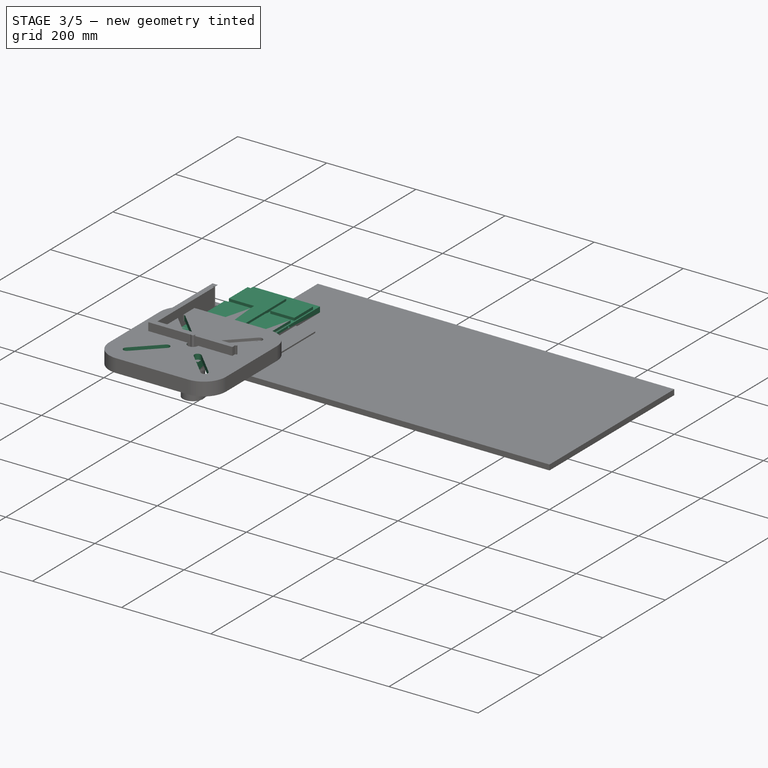
[diagram: stage 3 of 5 — iso view after this stage's code; geometry added in this stage tinted green]
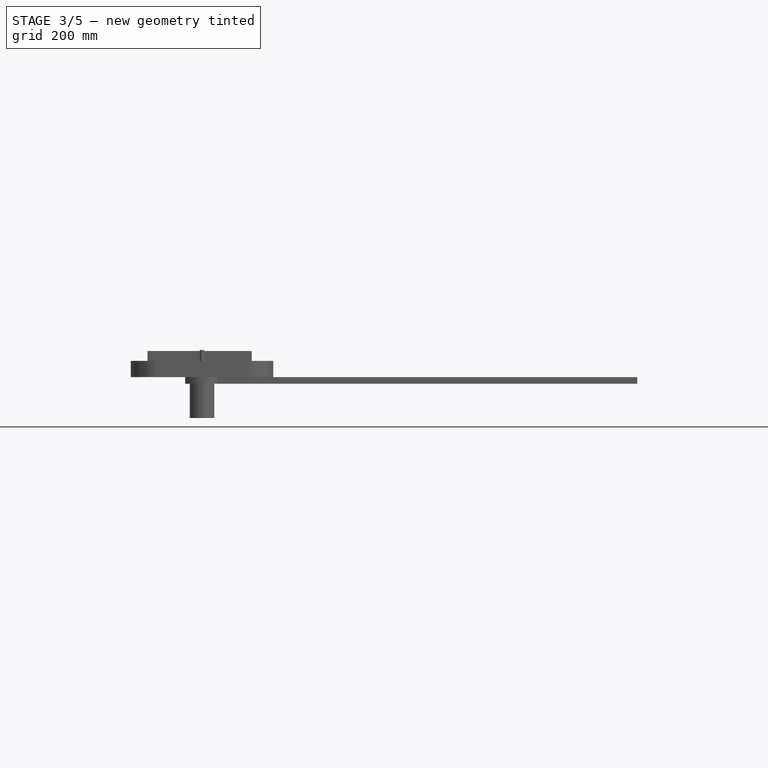
[diagram: stage 3 of 5 — front view after this stage's code; geometry added in this stage tinted green]
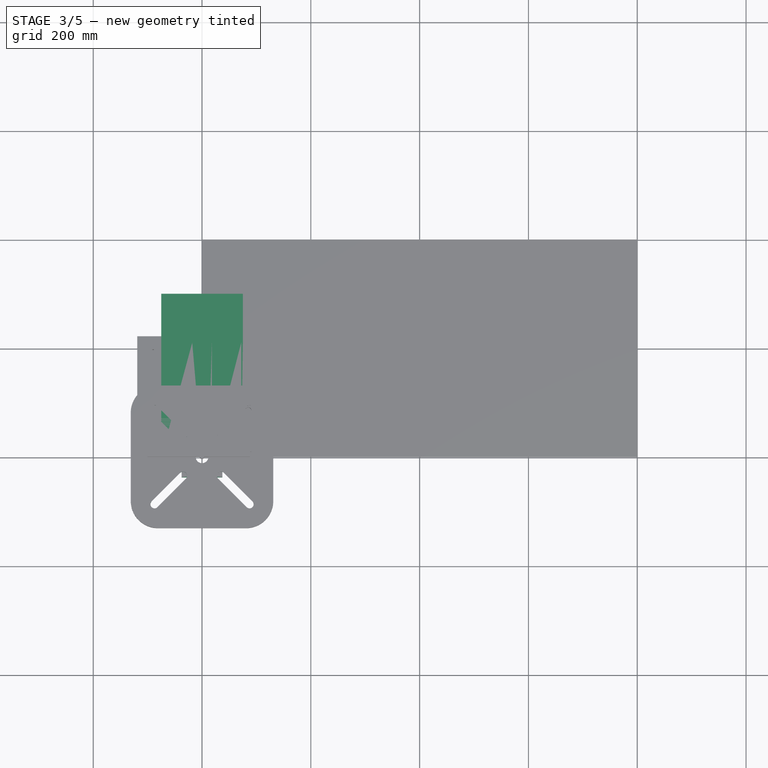
[diagram: stage 3 of 5 — top view after this stage's code; geometry added in this stage tinted green]
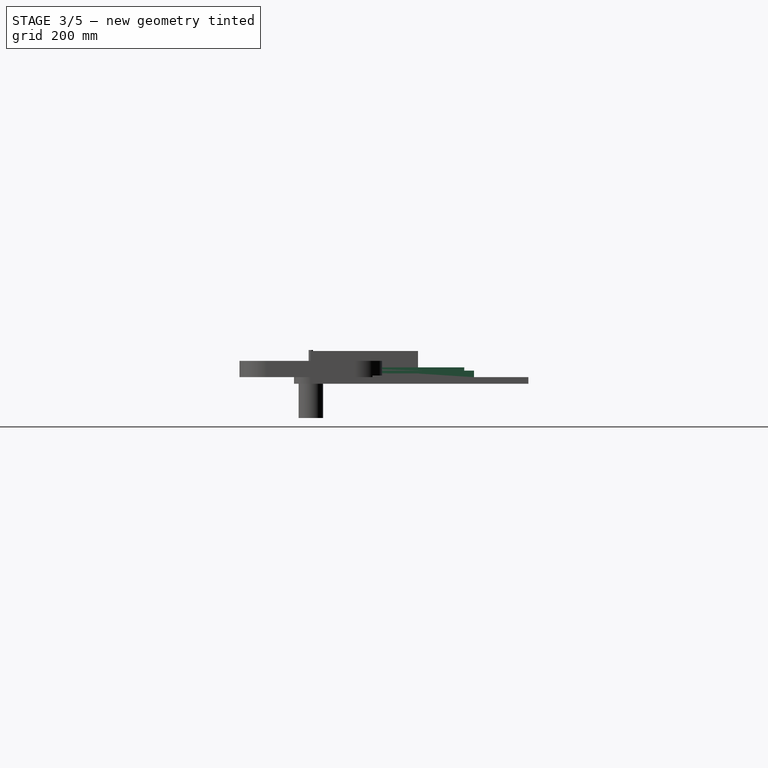
[diagram: stage 3 of 5 — right view after this stage's code; geometry added in this stage tinted green]
FEATURE [PartDesign::Body] Body007  label="base_bottom"
  Group = -> [Sketch016,Pad006,Sketch017,Sketch018,Pocket010,Pocket011,Mirrored001,Sketch019,Pocket012,Sketch020,Pocket013]
  Origin = -> Origin010
  Tip = -> Pocket013
FEATURE [Sketcher::SketchObject] Sketch021  label="side_left_main_sk"
  AttachmentSupport = -> [XY_Plane012]
  FullyConstrained = true
  MapMode = 5
  expr: .Constraints.side_height = Spreadsheet.base_height
  expr: .Constraints.side_length = Spreadsheet.base_depth
  sketch-geometry (4):
    g0: LineSegment StartX=-75 StartY=300 StartZ=0 EndX=0 EndY=300 EndZ=0
    g1: LineSegment StartX=0 StartY=300 StartZ=0 EndX=0 EndY=0 EndZ=0
    g2: LineSegment StartX=0 StartY=0 StartZ=0 EndX=-75 EndY=0 EndZ=0
    g3: LineSegment StartX=-75 StartY=0 StartZ=0 EndX=-75 EndY=300 EndZ=0
  constraints (11):
    c: Coincident(g0,g1)
    c: Coincident(g1,g2)
    c: Coincident(g2,g3)
    c: Coincident(g3,g0)
    c: Horizontal(g0)
    c: Horizontal(g2)
    c: Vertical(g1)
    c: Vertical(g3)
    c: DistanceX(g2,g2) = 75  'side_height'
    c: Coincident(g1,g-1)
    c: DistanceY(g1,g1) = 300  'side_length'
FEATURE [PartDesign::Pad] Pad007
  Direction = (0,0,1)
  Length = 18
  Length2 = 10
  Profile = -> Sketch021
  ReferenceAxis = -> Sketch021 [N_Axis]
  Suppressed = false
  Type = 0
  expr: Length = Spreadsheet.ply_18
FEATURE [Sketcher::SketchObject] Sketch022
  AttachmentSupport = -> [Pad007]
  FullyConstrained = true
  MapMode = 5
  Placement = pos=(0,0,0) rot=(1,0,0;1.5708rad)
  expr: Constraints[10] = Spreadsheet.ply_18
  expr: Constraints[11] = Spreadsheet.ply_18
  expr: Constraints[20] = Spreadsheet.table_radius
  expr: Constraints[21] = Spreadsheet.ply_3
  expr: Constraints[22] = Spreadsheet.ply_18
  expr: Constraints[23] = Spreadsheet.base_height
  expr: Constraints[8] = Spreadsheet.table_radius
  expr: Constraints[9] = Spreadsheet.table_radius
  sketch-geometry (8):
    g0: LineSegment StartX=-18 StartY=18 StartZ=0 EndX=-12 EndY=18 EndZ=0
    g1: LineSegment StartX=-12 StartY=18 StartZ=0 EndX=-12 EndY=12 EndZ=0
    g2: LineSegment StartX=-12 StartY=12 StartZ=0 EndX=-18 EndY=12 EndZ=0
    g3: LineSegment StartX=-18 StartY=12 StartZ=0 EndX=-18 EndY=18 EndZ=0
    g4: LineSegment StartX=-75 StartY=18 StartZ=0 EndX=-72 EndY=18 EndZ=0
    g5: LineSegment StartX=-72 StartY=18 StartZ=0 EndX=-72 EndY=12 EndZ=0
    g6: LineSegment StartX=-72 StartY=12 StartZ=0 EndX=-75 EndY=12 EndZ=0
    g7: LineSegment StartX=-75 StartY=12 StartZ=0 EndX=-75 EndY=18 EndZ=0
  constraints (24):
    c: Coincident(g0,g1)
    c: Coincident(g1,g2)
    c: Coincident(g2,g3)
    c: Coincident(g3,g0)
    c: Horizontal(g0)
    c: Horizontal(g2)
    c: Vertical(g1)
    c: Vertical(g3)
    c: DistanceX(g0,g0) = 6
    c: DistanceY(g1,g1) = 6
    c: DistanceX(g0,g-1) = 18
    c: DistanceY(g-1,g0) = 18
    c: Coincident(g4,g5)
    c: Coincident(g5,g6)
    c: Coincident(g6,g7)
    c: Coincident(g7,g4)
    c: Horizontal(g4)
    c: Horizontal(g6)
    c: Vertical(g5)
    c: Vertical(g7)
    c: DistanceY(g7,g7) = 6
    c: DistanceX(g4,g4) = 3
    c: DistanceY(g-1,g4) = 18
    c: DistanceX(g4,g-1) = 75
FEATURE [Sketcher::SketchObject] Sketch023
  AttachmentSupport = -> [Pad007]
  FullyConstrained = true
  MapMode = 5
  Placement = pos=(0,0,18) rot=(0,0,1;0rad)
  expr: Constraints[10] = Spreadsheet.ply_18
  expr: Constraints[11] = <<side_left_main_sk>>.Constraints.side_length
  expr: Constraints[20] = Spreadsheet.drawer_depth + 10 mm
  expr: Constraints[21] = Spreadsheet.ply_12
  expr: Constraints[22] = Spreadsheet.ply_18
  expr: Constraints[23] = Spreadsheet.base_height
  expr: Constraints[8] = <<side_left_main_sk>>.Constraints.side_height
  sketch-geometry (8):
    g0: LineSegment StartX=-75 StartY=300 StartZ=0 EndX=0 EndY=300 EndZ=0
    g1: LineSegment StartX=0 StartY=300 StartZ=0 EndX=0 EndY=282 EndZ=0
    g2: LineSegment StartX=0 StartY=282 StartZ=0 EndX=-75 EndY=282 EndZ=0
    g3: LineSegment StartX=-75 StartY=282 StartZ=0 EndX=-75 EndY=300 EndZ=0
    g4: LineSegment StartX=-75 StartY=222 StartZ=0 EndX=-18 EndY=222 EndZ=0
    g5: LineSegment StartX=-18 StartY=222 StartZ=0 EndX=-18 EndY=210 EndZ=0
    g6: LineSegment StartX=-18 StartY=210 StartZ=0 EndX=-75 EndY=210 EndZ=0
    g7: LineSegment StartX=-75 StartY=210 StartZ=0 EndX=-75 EndY=222 EndZ=0
  constraints (24):
    c: Coincident(g0,g1)
    c: Coincident(g1,g2)
    c: Coincident(g2,g3)
    c: Coincident(g3,g0)
    c: Horizontal(g0)
    c: Horizontal(g2)
    c: Vertical(g1)
    c: Vertical(g3)
    c: DistanceX(g0,g0) = 75
    c: DistanceX(g-1,g1) = 0
    c: DistanceY(g3,g3) = 18
    c: DistanceY(g-1,g0) = 300
    c: Coincident(g4,g5)
    c: Coincident(g5,g6)
    c: Coincident(g6,g7)
    c: Coincident(g7,g4)
    c: Horizontal(g4)
    c: Horizontal(g6)
    c: Vertical(g5)
    c: Vertical(g7)
    c: DistanceY(g-1,g5) = 210
    c: Distance(g5) = 12
    c: DistanceX(g5,g-1) = 18
    c: DistanceX(g6,g-1) = 75
FEATURE [PartDesign::Pocket] Pocket014
  BaseFeature = -> Pad007
  Direction = (0,0,-1)
  Length = 6
  Length2 = 5
  Profile = -> Sketch023
  ReferenceAxis = -> Sketch023 [N_Axis]
  Suppressed = false
  Type = 0
  expr: Length = Spreadsheet.table_radius
FEATURE [Sketcher::SketchObject] Sketch025
  AttachmentSupport = -> [XY_Plane014]
  FullyConstrained = true
  MapMode = 5
  expr: Constraints[10] = Spreadsheet.base_depth
  expr: Constraints[8] = Spreadsheet.base_height
  sketch-geometry (4):
    g0: LineSegment StartX=0 StartY=300 StartZ=0 EndX=75 EndY=300 EndZ=0
    g1: LineSegment StartX=75 StartY=300 StartZ=0 EndX=75 EndY=0 EndZ=0
    g2: LineSegment StartX=75 StartY=0 StartZ=0 EndX=0 EndY=0 EndZ=0
    g3: LineSegment StartX=0 StartY=0 StartZ=0 EndX=0 EndY=300 EndZ=0
  constraints (11):
    c: Coincident(g0,g1)
    c: Coincident(g1,g2)
    c: Coincident(g2,g3)
    c: Coincident(g3,g0)
    c: Horizontal(g0)
    c: Horizontal(g2)
    c: Vertical(g1)
    c: Vertical(g3)
    c: DistanceX(g2,g2) = 75
    c: Coincident(g2,g-1)
    c: DistanceY(g1,g1) = 300
FEATURE [PartDesign::Pad] Pad008
  Direction = (0,0,1)
  Length = 18
  Length2 = 10
  Profile = -> Sketch025
  ReferenceAxis = -> Sketch025 [N_Axis]
  Suppressed = false
  Type = 0
  expr: Length = Spreadsheet.ply_18
FEATURE [Sketcher::SketchObject] Sketch026
  AttachmentSupport = -> [Pad008]
  FullyConstrained = true
  MapMode = 5
  Placement = pos=(0,0,18) rot=(0,0,1;0rad)
  expr: Constraints[16] = Spreadsheet.base_depth
  expr: Constraints[17] = Spreadsheet.ply_18
  expr: Constraints[19] = Spreadsheet.base_height
  expr: Constraints[20] = Spreadsheet.drawer_depth + 10 mm
  expr: Constraints[21] = Spreadsheet.ply_12
  expr: Constraints[22] = Spreadsheet.ply_18
  expr: Constraints[23] = Spreadsheet.base_height
  sketch-geometry (8):
    g0: LineSegment StartX=0 StartY=300 StartZ=0 EndX=75 EndY=300 EndZ=0
    g1: LineSegment StartX=75 StartY=300 StartZ=0 EndX=75 EndY=282 EndZ=0
    g2: LineSegment StartX=75 StartY=282 StartZ=0 EndX=0 EndY=282 EndZ=0
    g3: LineSegment StartX=0 StartY=282 StartZ=0 EndX=0 EndY=300 EndZ=0
    g4: LineSegment StartX=18 StartY=222 StartZ=0 EndX=75 EndY=222 EndZ=0
    g5: LineSegment StartX=75 StartY=222 StartZ=0 EndX=75 EndY=210 EndZ=0
    g6: LineSegment StartX=75 StartY=210 StartZ=0 EndX=18 EndY=210 EndZ=0
    g7: LineSegment StartX=18 StartY=210 StartZ=0 EndX=18 EndY=222 EndZ=0
  constraints (24):
    c: Coincident(g0,g1)
    c: Coincident(g1,g2)
    c: Coincident(g2,g3)
    c: Coincident(g3,g0)
    c: Horizontal(g0)
    c: Horizontal(g2)
    c: Vertical(g1)
    c: Vertical(g3)
    c: Coincident(g4,g5)
    c: Coincident(g5,g6)
    c: Coincident(g6,g7)
    c: Coincident(g7,g4)
    c: Horizontal(g4)
    c: Horizontal(g6)
    c: Vertical(g5)
    c: Vertical(g7)
    c: DistanceY(g-1,g0) = 300
    c: DistanceY(g1,g1) = 18
    c: DistanceX(g2,g-1) = 0
    c: DistanceX(g0,g0) = 75
    c: DistanceY(g-1,g6) = 210
    c: DistanceY(g5,g5) = 12
    c: DistanceX(g-1,g6) = 18
    c: DistanceX(g-1,g5) = 75
FEATURE [PartDesign::Pocket] Pocket017
  BaseFeature = -> Pad008
  Direction = (0,0,-1)
  Length = 6
  Length2 = 5
  Profile = -> Sketch026
  ReferenceAxis = -> Sketch026 [N_Axis]
  Suppressed = false
  Type = 0
  expr: Length = Spreadsheet.table_radius
FEATURE [Sketcher::SketchObject] Sketch027
  AttachmentSupport = -> [Pocket017]
  FullyConstrained = true
  MapMode = 5
  Placement = pos=(0,0,0) rot=(1,0,0;1.5708rad)
  expr: Constraints[17] = Spreadsheet.table_radius
  expr: Constraints[18] = Spreadsheet.table_radius
  expr: Constraints[19] = Spreadsheet.ply_3
  expr: Constraints[20] = Spreadsheet.ply_18
  expr: Constraints[21] = Spreadsheet.base_height
  expr: Constraints[22] = Spreadsheet.ply_18
  expr: Constraints[23] = Spreadsheet.ply_18
  sketch-geometry (8):
    g0: LineSegment StartX=12 StartY=18 StartZ=0 EndX=18 EndY=18 EndZ=0
    g1: LineSegment StartX=18 StartY=18 StartZ=0 EndX=18 EndY=12 EndZ=0
    g2: LineSegment StartX=18 StartY=12 StartZ=0 EndX=12 EndY=12 EndZ=0
    g3: LineSegment StartX=12 StartY=12 StartZ=0 EndX=12 EndY=18 EndZ=0
    g4: LineSegment StartX=72 StartY=18 StartZ=0 EndX=75 EndY=18 EndZ=0
    g5: LineSegment StartX=75 StartY=18 StartZ=0 EndX=75 EndY=12 EndZ=0
    g6: LineSegment StartX=75 StartY=12 StartZ=0 EndX=72 EndY=12 EndZ=0
    g7: LineSegment StartX=72 StartY=12 StartZ=0 EndX=72 EndY=18 EndZ=0
  constraints (24):
    c: Coincident(g0,g1)
    c: Coincident(g1,g2)
    c: Coincident(g2,g3)
    c: Coincident(g3,g0)
    c: Horizontal(g0)
    c: Horizontal(g2)
    c: Vertical(g1)
    c: Vertical(g3)
    c: Coincident(g4,g5)
    c: Coincident(g5,g6)
    c: Coincident(g6,g7)
    c: Coincident(g7,g4)
    c: Horizontal(g4)
    c: Horizontal(g6)
    c: Vertical(g5)
    c: Vertical(g7)
    c: Equal(g1,g7)
    c: DistanceY(g3,g3) = 6
    c: DistanceX(g0,g0) = 6
    c: DistanceX(g4,g4) = 3
    c: DistanceX(g-1,g0) = 18
    c: DistanceX(g-1,g4) = 75
    c: DistanceY(g-1,g0) = 18
    c: DistanceY(g-1,g4) = 18
FEATURE [PartDesign::Pocket] Pocket018
  BaseFeature = -> Pocket017
  Direction = (0,1,-2e-16)
  Length = 300
  Length2 = 5
  Profile = -> Sketch027
  ReferenceAxis = -> Sketch027 [N_Axis]
  Suppressed = false
  Type = 0
  expr: Length = Spreadsheet.base_depth
FEATURE [PartDesign::Body] Body008  label="base_side_left"
  Group = -> [Sketch021,Pad007,Sketch022,Sketch023,Pocket014,Pocket015,Sketch024,Pocket016,Sketch031,Pocket020]
  Origin = -> Origin011
  Placement = pos=(-131,0,0) rot=(0,1,0;1.5708rad)
  Tip = -> Pocket020
  expr: .Placement.Base.x = -(<<base_main_sk>>.Constraints.base_width / 2 + 2 / 3 * Spreadsheet.ply_18)
FEATURE [Sketcher::SketchObject] Sketch032
  AttachmentSupport = -> [Pocket018]
  FullyConstrained = true
  MapMode = 5
  Placement = pos=(75,0,0) rot=(0.57735,0.57735,0.57735;2.0944rad)
  expr: Constraints[4] = Spreadsheet.ply_18 / 2
  expr: Constraints[5] = Spreadsheet.ply_18 / 2
  sketch-geometry (2):
    g0: Circle CenterX=20 CenterY=9 CenterZ=0 NormalX=0 NormalY=0 NormalZ=1 AngleXU=0 Radius=2.5
    g1: Circle CenterX=200 CenterY=9 CenterZ=0 NormalX=0 NormalY=0 NormalZ=1 AngleXU=0 Radius=2.5
  constraints (6):
    c: Equal(g0,g1)
    c: Diameter(g0) = 5
    c: DistanceX(g-1,g0) = 20
    c: DistanceX(g-1,g1) = 200
    c: DistanceY(g-1,g0) = 9
    c: DistanceY(g-1,g1) = 9
FEATURE [PartDesign::Pocket] Pocket021
  BaseFeature = -> Pocket018
  Direction = (-1,0,0)
  Length = 75
  Length2 = 5
  Profile = -> Sketch032
  ReferenceAxis = -> Sketch032 [N_Axis]
  Suppressed = false
  Type = 0
  expr: Length = Spreadsheet.base_height
FEATURE [PartDesign::Body] Body009  label="base_side_right"
  Group = -> [Sketch025,Pad008,Sketch026,Pocket017,Sketch027,Pocket018,Sketch032,Pocket021]
  Origin = -> Origin013
  Placement = pos=(131,0,0) rot=(0,-1,0;1.5708rad)
  Tip = -> Pocket021
  expr: .Placement.Base.x = Spreadsheet.base_width / 2
FEATURE [Sketcher::SketchObject] Sketch033
  AttachmentSupport = -> [XY_Plane017]
  FullyConstrained = true
  MapMode = 5
  expr: Constraints[10] = Spreadsheet.base_height
  sketch-geometry (4):
    g0: LineSegment StartX=-37.5 StartY=37.5 StartZ=0 EndX=37.5 EndY=37.5 EndZ=0
    g1: LineSegment StartX=37.5 StartY=37.5 StartZ=0 EndX=37.5 EndY=-37.5 EndZ=0
    g2: LineSegment StartX=37.5 StartY=-37.5 StartZ=0 EndX=-37.5 EndY=-37.5 EndZ=0
    g3: LineSegment StartX=-37.5 StartY=-37.5 StartZ=0 EndX=-37.5 EndY=37.5 EndZ=0
  constraints (11):
    c: Coincident(g0,g1)
    c: Coincident(g1,g2)
    c: Coincident(g2,g3)
    c: Coincident(g3,g0)
    c: Horizontal(g0)
    c: Horizontal(g2)
    c: Vertical(g1)
    c: Vertical(g3)
    c: Symmetric(g0,g1,g-1)
    c: Equal(g3,g2)
    c: DistanceX(g2,g2) = 75
FEATURE [PartDesign::Pad] Pad011
  Direction = (0,0,1)
  Length = 18
  Length2 = 10
  Profile = -> Sketch033
  ReferenceAxis = -> Sketch033 [N_Axis]
  Suppressed = false
  Type = 0
  expr: Length = Spreadsheet.ply_18
FEATURE [Sketcher::SketchObject] Sketch034
  AttachmentSupport = -> [Pad011]
  FullyConstrained = true
  MapMode = 5
  Placement = pos=(0,0,18) rot=(0,0,1;0rad)
  expr: Constraints[10] = Spreadsheet.base_height / 2 - 10 mm
  expr: Constraints[6] = Spreadsheet.base_height / 2 - 10 mm
  expr: Constraints[7] = Spreadsheet.base_height / 2 - 10 mm
  expr: Constraints[9] = Spreadsheet.base_height / 2 - 10 mm
  sketch-geometry (5):
    g0: Circle CenterX=0 CenterY=0 CenterZ=0 NormalX=0 NormalY=0 NormalZ=1 AngleXU=0 Radius=30
    g1: Circle CenterX=-27.5 CenterY=27.5 CenterZ=0 NormalX=0 NormalY=0 NormalZ=1 AngleXU=0 Radius=2.5
    g2: Circle CenterX=27.5 CenterY=27.5 CenterZ=0 NormalX=0 NormalY=0 NormalZ=1 AngleXU=0 Radius=2.5
    g3: Circle CenterX=27.5 CenterY=-27.5 CenterZ=0 NormalX=0 NormalY=0 NormalZ=1 AngleXU=0 Radius=2.5
    g4: Circle CenterX=-27.5 CenterY=-27.5 CenterZ=0 NormalX=0 NormalY=0 NormalZ=1 AngleXU=0 Radius=2.5
  constraints (12):
    c: Diameter(g0) = 60
    c: Coincident(g0,g-1)
    c: Equal(g1,g2)
    c: Equal(g2,g3)
    c: Equal(g3,g4)
    c: Diameter(g1) = 5
    c: DistanceY(g0,g1) = 27.5
    c: DistanceX(g1,g0) = 27.5
    c: Symmetric(g1,g3,g0)
    c: DistanceX(g4,g0) = 27.5
    c: DistanceY(g4,g0) = 27.5
    c: Symmetric(g4,g2,g0)
FEATURE [PartDesign::Pocket] Pocket022
  BaseFeature = -> Pad011
  Direction = (0,0,-1)
  Length = 18
  Length2 = 5
  Profile = -> Sketch034
  ReferenceAxis = -> Sketch034 [N_Axis]
  Suppressed = false
  Type = 0
  expr: Length = Spreadsheet.ply_18
FEATURE [Sketcher::SketchObject] Sketch035
  AttachmentSupport = -> [Pocket022]
  ExternalGeometry = -> [Pocket022]
  FullyConstrained = true
  MapMode = 5
  Placement = pos=(0,0,18) rot=(0,0,1;0rad)
  sketch-geometry (1):
    g0: Circle CenterX=0 CenterY=0 CenterZ=0 NormalX=0 NormalY=0 NormalZ=1 AngleXU=0 Radius=34
  constraints (2):
    c: Coincident(g0,g-3)
    c: Diameter(g0) = 68
FEATURE [PartDesign::Pocket] Pocket023
  BaseFeature = -> Pocket022
  Direction = (0,0,-1)
  Length = 4
  Length2 = 5
  Profile = -> Sketch035
  ReferenceAxis = -> Sketch035 [N_Axis]
  Suppressed = false
  Type = 0
FEATURE [PartDesign::Body] Body012  label="vacuum_port"
  Group = -> [Sketch033,Pad011,Sketch034,Pocket022,Sketch035,Pocket023]
  Origin = -> Origin016
  Placement = pos=(-149,252,37.5) rot=(0,1,0;1.5708rad)
  Tip = -> Pocket023
  expr: .Placement.Base.x = -(Spreadsheet.base_width / 2 + Spreadsheet.ply_18)
  expr: .Placement.Base.y = Spreadsheet.base_depth - Spreadsheet.ply_18 - 30 mm
  expr: .Placement.Base.z = Spreadsheet.base_height / 2
FEATURE [Sketcher::SketchObject] Sketch036
  AttachmentSupport = -> [XY_Plane018]
  FullyConstrained = true
  MapMode = 5
  expr: Constraints[10] = Spreadsheet.drawer_depth + 10 mm + Spreadsheet.ply_12
  expr: Constraints[9] = Spreadsheet.base_width - 2 * (Spreadsheet.ply_18 - Spreadsheet.table_radius)
  sketch-geometry (4):
    g0: LineSegment StartX=-119 StartY=0 StartZ=0 EndX=119 EndY=0 EndZ=0
    g1: LineSegment StartX=119 StartY=0 StartZ=0 EndX=119 EndY=222 EndZ=0
    g2: LineSegment StartX=119 StartY=222 StartZ=0 EndX=-119 EndY=222 EndZ=0
    g3: LineSegment StartX=-119 StartY=222 StartZ=0 EndX=-119 EndY=0 EndZ=0
  constraints (11):
    c: Coincident(g0,g1)
    c: Coincident(g1,g2)
    c: Coincident(g2,g3)
    c: Coincident(g3,g0)
    c: Horizontal(g0)
    c: Horizontal(g2)
    c: Vertical(g1)
    c: Vertical(g3)
    c: Symmetric(g0,g0,g-1)
    c: DistanceX(g0,g0) = 238
    c: DistanceY(g3,g3) = 222
FEATURE [PartDesign::Pad] Pad012
  Direction = (0,0,1)
  Length = 3
  Length2 = 10
  Profile = -> Sketch036
  ReferenceAxis = -> Sketch036 [N_Axis]
  Suppressed = false
  Type = 0
  expr: Length = Spreadsheet.ply_3
FEATURE [Sketcher::SketchObject] Sketch041
  AttachmentSupport = -> [Pad015]
  FullyConstrained = true
  MapMode = 5
  Placement = pos=(0,0,-75.1) rot=(1,0,0;3.14159rad)
  sketch-geometry (1):
    g0: Circle CenterX=0 CenterY=0 CenterZ=0 NormalX=0 NormalY=0 NormalZ=1 AngleXU=0 Radius=13.5
  constraints (2):
    c: Coincident(g0,g-1)
    c: Diameter(g0) = 27
FEATURE [PartDesign::Pocket] Pocket025
  BaseFeature = -> Pad015
  Direction = (0,0,1)
  Length = 77
  Length2 = 5
  Profile = -> Sketch041
  ReferenceAxis = -> Sketch041 [N_Axis]
  Suppressed = false
  Type = 0
FEATURE [Sketcher::SketchObject] Sketch042
  AttachmentSupport = -> [Pocket025]
  FullyConstrained = true
  MapMode = 5
  Placement = pos=(0,0,30) rot=(0,0,1;0rad)
  sketch-geometry (1):
    g0: Circle CenterX=0 CenterY=0 CenterZ=0 NormalX=0 NormalY=0 NormalZ=1 AngleXU=0 Radius=11.75
  constraints (2):
    c: Coincident(g0,g-1)
    c: Diameter(g0) = 23.5
FEATURE [PartDesign::Pocket] Pocket026
  BaseFeature = -> Pocket025
  Direction = (0,0,-1)
  Length = 50
  Length2 = 5
  Profile = -> Sketch042
  ReferenceAxis = -> Sketch042 [N_Axis]
  Suppressed = false
  Type = 0
FEATURE [Sketcher::SketchObject] Sketch043
  AttachmentSupport = -> [Pocket026]
  FullyConstrained = false
  MapMode = 5
  Placement = pos=(0,0,30) rot=(0,0,1;0rad)
  sketch-geometry (4):
    g0: ArcOfCircle CenterX=35 CenterY=35 CenterZ=0 NormalX=0 NormalY=0 NormalZ=1 AngleXU=0 Radius=7.5 StartAngle=2.35619 EndAngle=5.49779
    g1: ArcOfCircle CenterX=87.3259 CenterY=87.3259 CenterZ=0 NormalX=0 NormalY=0 NormalZ=1 AngleXU=0 Radius=7.5 StartAngle=5.49779 EndAngle=8.63938
    g2: LineSegment StartX=40.3033 StartY=29.6967 StartZ=0 EndX=92.6292 EndY=82.0226 EndZ=0
    g3: LineSegment StartX=82.0226 StartY=92.6292 StartZ=0 EndX=29.6967 EndY=40.3033 EndZ=0
  constraints (9):
    c: Tangent(g0,g2) = -1.5708
    c: Tangent(g2,g1) = -1.5708
    c: Tangent(g1,g3) = -1.5708
    c: Tangent(g3,g0) = -1.5708
    c: Equal(g0,g1)
    c: Diameter(g0) = 15
    c: Distance(g0,g1) = 74
    c: DistanceX(g-1,g0) = 35
    c: DistanceY(g-1,g0) = 35
FEATURE [PartDesign::Pocket] Pocket027
  BaseFeature = -> Pocket026
  Direction = (0,0,-1)
  Length = 15
  Length2 = 5
  Profile = -> Sketch043
  ReferenceAxis = -> Sketch043 [N_Axis]
  Suppressed = false
  Type = 0
FEATURE [PartDesign::PolarPattern] PolarPattern002
  Angle = 360
  Axis = -> Sketch043 [N_Axis]
  BaseFeature = -> Pocket027
  Mode = 0
  Occurrences = 4
  Offset = 120
  Originals = -> [Pocket027]
  Suppressed = false
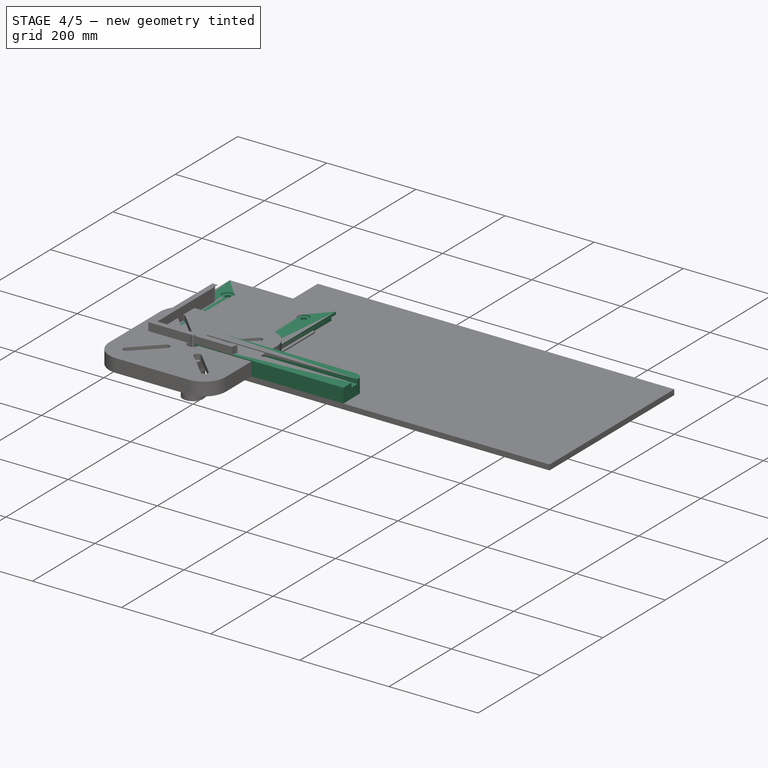
[diagram: stage 4 of 5 — iso view after this stage's code; geometry added in this stage tinted green]
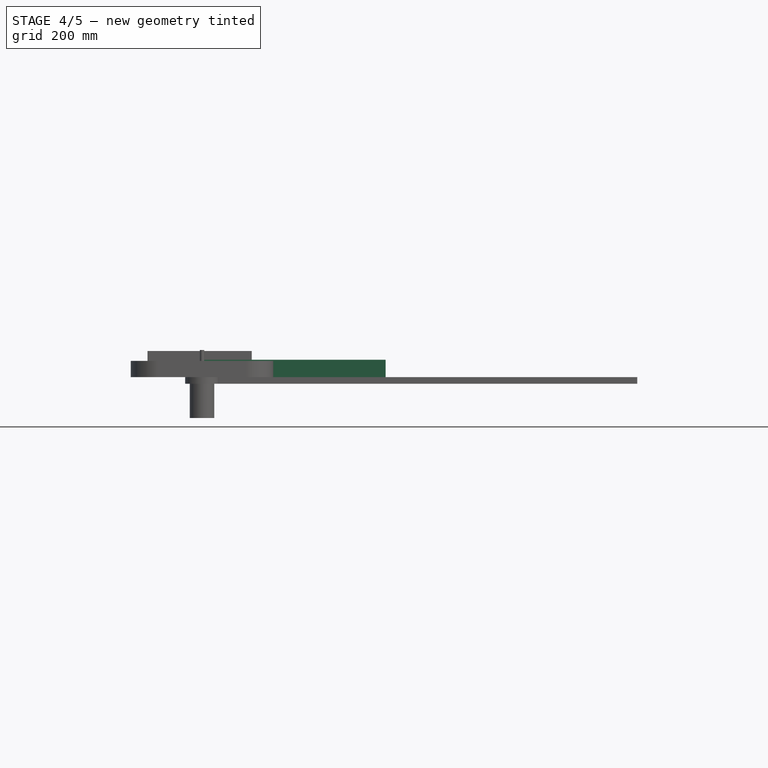
[diagram: stage 4 of 5 — front view after this stage's code; geometry added in this stage tinted green]
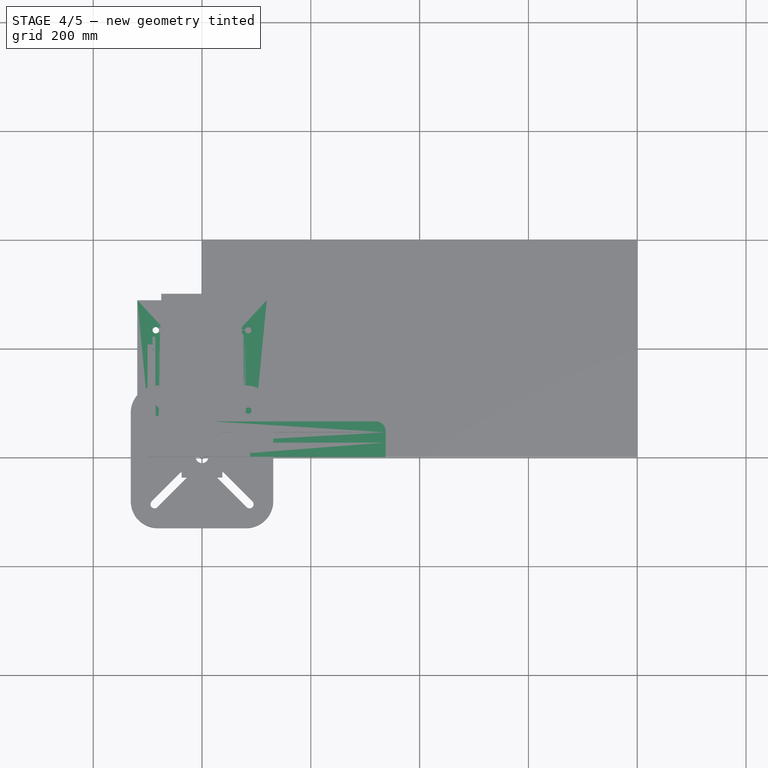
[diagram: stage 4 of 5 — top view after this stage's code; geometry added in this stage tinted green]
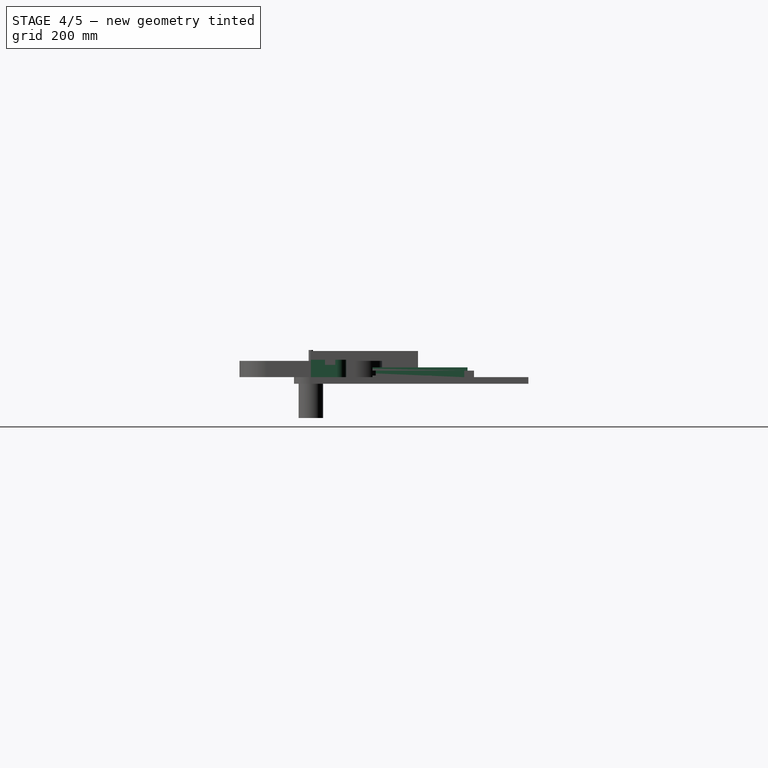
[diagram: stage 4 of 5 — right view after this stage's code; geometry added in this stage tinted green]
FEATURE [PartDesign::Body] Body005  label="fence_base"
  Group = -> [Sketch009,Pad004,Sketch010,Pocket005,Mirrored,Sketch011,Pocket006]
  Origin = -> Origin007
  Tip = -> Pocket006
FEATURE [Sketcher::SketchObject] Sketch012  label="fence_face"
  AttachmentSupport = -> [XY_Plane005]
  FullyConstrained = true
  MapMode = 5
  expr: .Constraints.fence_length = Spreadsheet.table_length / 2 - 45 mm / 2
  expr: Constraints[11] = 3 * Spreadsheet.table_radius
  sketch-geometry (6):
    g0: LineSegment StartX=18 StartY=65 StartZ=0 EndX=319.5 EndY=65 EndZ=0
    g1: LineSegment StartX=337.5 StartY=47 StartZ=0 EndX=337.5 EndY=0 EndZ=0
    g2: LineSegment StartX=337.5 StartY=0 StartZ=0 EndX=0 EndY=0 EndZ=0
    g3: LineSegment StartX=0 StartY=0 StartZ=0 EndX=0 EndY=47 EndZ=0
    g4: ArcOfCircle CenterX=18 CenterY=47 CenterZ=0 NormalX=0 NormalY=0 NormalZ=1 AngleXU=0 Radius=18 StartAngle=1.5708 EndAngle=3.14159
    g5: ArcOfCircle CenterX=319.5 CenterY=47 CenterZ=0 NormalX=0 NormalY=0 NormalZ=1 AngleXU=0 Radius=18 StartAngle=0 EndAngle=1.5708
  constraints (15):
    c: Coincident(g1,g2)
    c: Coincident(g2,g3)
    c: Horizontal(g0)
    c: Horizontal(g2)
    c: Vertical(g1)
    c: Vertical(g3)
    c: Tangent(g3,g4) = 1.5708
    c: Tangent(g0,g4) = 1.5708
    c: Tangent(g0,g5) = 1.5708
    c: Tangent(g1,g5) = 1.5708
    c: Equal(g4,g5)
    c: Radius(g4) = 18
    c: DistanceX(g2,g2) = 337.5  'fence_length'
    c: Coincident(g2,g-1)
    c: DistanceY(g1,g0) = 65  'fence_height'
FEATURE [PartDesign::Pad] Pad005
  Direction = (0,0,1)
  Length = 32
  Length2 = 10
  Profile = -> Sketch012
  ReferenceAxis = -> Sketch012 [N_Axis]
  Suppressed = false
  Type = 0
  expr: Length = Spreadsheet.fence_face_d
FEATURE [Sketcher::SketchObject] Sketch013
  AttachmentSupport = -> [Pad005]
  FullyConstrained = true
  MapMode = 5
  Placement = pos=(0,0,32) rot=(0,0,1;0rad)
  expr: Constraints[11] = Sketch012.Constraints.fence_height / 2 - 9.5 mm + 3 mm
  expr: Constraints[8] = Spreadsheet.t_track_width
  expr: Constraints[9] = Sketch012.Constraints.fence_length
  sketch-geometry (4):
    g0: LineSegment StartX=0 StartY=45 StartZ=0 EndX=337.5 EndY=45 EndZ=0
    g1: LineSegment StartX=337.5 StartY=45 StartZ=0 EndX=337.5 EndY=26 EndZ=0
    g2: LineSegment StartX=337.5 StartY=26 StartZ=0 EndX=0 EndY=26 EndZ=0
    g3: LineSegment StartX=0 StartY=26 StartZ=0 EndX=0 EndY=45 EndZ=0
  constraints (12):
    c: Coincident(g0,g1)
    c: Coincident(g1,g2)
    c: Coincident(g2,g3)
    c: Coincident(g3,g0)
    c: Horizontal(g0)
    c: Horizontal(g2)
    c: Vertical(g1)
    c: Vertical(g3)
    c: DistanceY(g3,g3) = 19
    c: DistanceX(g2,g2) = 337.5
    c: DistanceX(g2,g-1) = 0
    c: DistanceY(g-1,g2) = 26
FEATURE [PartDesign::Pocket] Pocket007
  BaseFeature = -> Pad005
  Direction = (0,0,-1)
  Length = 9.5
  Length2 = 5
  Profile = -> Sketch013
  ReferenceAxis = -> Sketch013 [N_Axis]
  Suppressed = false
  Type = 0
  expr: Length = Spreadsheet.t_track_depth
FEATURE [PartDesign::Body] Body006  label="fence_face_l"
  Group = -> [Clone]
  Origin = -> Origin008
  Placement = pos=(-382.5,0,0) rot=(0,0,1;0rad)
  Tip = -> Clone
  expr: .Placement.Base.x = -Spreadsheet.table_length / 2 - 45 mm / 2
FEATURE [App::Part] Part001  label="fence"
  Group = -> [Body004,Body005,Body006]
  Origin = -> Origin006
  Placement = pos=(0,300,36) rot=(0,0,1;0rad)
FEATURE [Sketcher::SketchObject] Sketch016  label="base_main_sk"
  AttachmentSupport = -> [XY_Plane011]
  FullyConstrained = true
  MapMode = 5
  expr: .Constraints.base_depth = Spreadsheet.base_depth - Spreadsheet.ply_18 + Spreadsheet.table_radius
  expr: .Constraints.base_width = Spreadsheet.iron_cast_table - 2 * Spreadsheet.ply_18 + 2 * Spreadsheet.table_radius
  sketch-geometry (4):
    g0: LineSegment StartX=-119 StartY=288 StartZ=0 EndX=119 EndY=288 EndZ=0
    g1: LineSegment StartX=119 StartY=288 StartZ=0 EndX=119 EndY=0 EndZ=0
    g2: LineSegment StartX=119 StartY=0 StartZ=0 EndX=-119 EndY=0 EndZ=0
    g3: LineSegment StartX=-119 StartY=0 StartZ=0 EndX=-119 EndY=288 EndZ=0
  constraints (11):
    c: Coincident(g0,g1)
    c: Coincident(g1,g2)
    c: Coincident(g2,g3)
    c: Coincident(g3,g0)
    c: Horizontal(g0)
    c: Horizontal(g2)
    c: Vertical(g1)
    c: Vertical(g3)
    c: Symmetric(g2,g1,g-1)
    c: DistanceX(g2,g2) = 238  'base_width'
    c: DistanceY(g3,g3) = 288  'base_depth'
FEATURE [PartDesign::Pad] Pad006
  Direction = (0,0,1)
  Length = 18
  Length2 = 10
  Profile = -> Sketch016
  ReferenceAxis = -> Sketch016 [N_Axis]
  Suppressed = false
  Type = 0
  expr: Length = Spreadsheet.ply_18
FEATURE [Sketcher::SketchObject] Sketch018
  AttachmentSupport = -> [Pad006]
  FullyConstrained = true
  MapMode = 5
  Placement = pos=(-119,0,0) rot=(0.57735,-0.57735,-0.57735;2.0944rad)
  expr: Constraints[11] = <<base_main_sk>>.Constraints.base_depth
  expr: Constraints[8] = Spreadsheet.table_radius
  expr: Constraints[9] = Spreadsheet.ply_18 - Spreadsheet.table_radius
  sketch-geometry (4):
    g0: LineSegment StartX=-288 StartY=12 StartZ=0 EndX=-282 EndY=12 EndZ=0
    g1: LineSegment StartX=-282 StartY=12 StartZ=0 EndX=-282 EndY=0 EndZ=0
    g2: LineSegment StartX=-282 StartY=0 StartZ=0 EndX=-288 EndY=0 EndZ=0
    g3: LineSegment StartX=-288 StartY=0 StartZ=0 EndX=-288 EndY=12 EndZ=0
  constraints (12):
    c: Coincident(g0,g1)
    c: Coincident(g1,g2)
    c: Coincident(g2,g3)
    c: Coincident(g3,g0)
    c: Horizontal(g0)
    c: Horizontal(g2)
    c: Vertical(g1)
    c: Vertical(g3)
    c: DistanceX(g0,g0) = 6
    c: DistanceY(g3,g3) = 12
    c: DistanceY(g1,g-1) = 0
    c: DistanceX(g2,g-1) = 288
FEATURE [PartDesign::Pocket] Pocket010
  BaseFeature = -> Pad006
  Direction = (1,0,0)
  Length = 238
  Length2 = 5
  Profile = -> Sketch018
  ReferenceAxis = -> Sketch018 [N_Axis]
  Suppressed = false
  Type = 0
  expr: Length = <<base_main_sk>>.Constraints.base_width
FEATURE [Sketcher::SketchObject] Sketch017
  AttachmentSupport = -> [Pad006]
  FullyConstrained = true
  MapMode = 5
  Placement = pos=(0,0,0) rot=(1,0,0;1.5708rad)
  expr: Constraints[10] = Spreadsheet.ply_18 - Spreadsheet.table_radius
  expr: Constraints[11] = <<base_main_sk>>.Constraints.base_width / 2
  expr: Constraints[8] = Spreadsheet.table_radius
  sketch-geometry (4):
    g0: LineSegment StartX=-119 StartY=12 StartZ=0 EndX=-113 EndY=12 EndZ=0
    g1: LineSegment StartX=-113 StartY=12 StartZ=0 EndX=-113 EndY=0 EndZ=0
    g2: LineSegment StartX=-113 StartY=0 StartZ=0 EndX=-119 EndY=0 EndZ=0
    g3: LineSegment StartX=-119 StartY=0 StartZ=0 EndX=-119 EndY=12 EndZ=0
  constraints (12):
    c: Coincident(g0,g1)
    c: Coincident(g1,g2)
    c: Coincident(g2,g3)
    c: Coincident(g3,g0)
    c: Horizontal(g0)
    c: Horizontal(g2)
    c: Vertical(g1)
    c: Vertical(g3)
    c: DistanceX(g0,g0) = 6
    c: DistanceY(g-1,g1) = 0
    c: DistanceY(g3,g3) = 12
    c: DistanceX(g2,g-1) = 119
FEATURE [PartDesign::Pocket] Pocket011
  BaseFeature = -> Pocket010
  Direction = (0,1,-2e-16)
  Length = 288
  Length2 = 5
  Profile = -> Sketch017
  ReferenceAxis = -> Sketch017 [N_Axis]
  Suppressed = false
  Type = 0
  expr: Length = <<base_main_sk>>.Constraints.base_depth
FEATURE [PartDesign::Mirrored] Mirrored001
  BaseFeature = -> Pocket011
  MirrorPlane = -> Sketch017 [V_Axis]
  Originals = -> [Pocket011]
  Suppressed = false
FEATURE [Sketcher::SketchObject] Sketch019
  AttachmentSupport = -> [Mirrored001]
  FullyConstrained = true
  MapMode = 5
  Placement = pos=(0,0,18) rot=(0,0,1;0rad)
  expr: Constraints[0] = Spreadsheet.mounting_screws_distance / 2
  expr: Constraints[10] = Spreadsheet.mounting_screws_distance
  expr: Constraints[11] = Spreadsheet.mounting_screws_distance
  expr: Constraints[1] = Spreadsheet.DIN1624_M10_d1
  expr: Constraints[5] = Spreadsheet.mounting_screws_distance
  expr: Constraints[6] = Spreadsheet.mounting_screws_distance
  expr: Constraints[7] = (Spreadsheet.table_depth - Spreadsheet.mounting_screws_distance) / 2 - 62 mm
  sketch-geometry (4):
    g0: Circle CenterX=-85 CenterY=63 CenterZ=0 NormalX=0 NormalY=0 NormalZ=1 AngleXU=0 Radius=6
    g1: Circle CenterX=-85 CenterY=233 CenterZ=0 NormalX=0 NormalY=0 NormalZ=1 AngleXU=0 Radius=6
    g2: Circle CenterX=85 CenterY=233 CenterZ=0 NormalX=0 NormalY=0 NormalZ=1 AngleXU=0 Radius=6
    g3: Circle CenterX=85 CenterY=63 CenterZ=0 NormalX=0 NormalY=0 NormalZ=1 AngleXU=0 Radius=6
  constraints (12):
    c: DistanceX(g0,g-1) = 85
    c: Diameter(g0) = 12
    c: Equal(g0,g1)
    c: Equal(g1,g2)
    c: Equal(g2,g3)
    c: DistanceY(g0,g1) = 170
    c: DistanceX(g0,g3) = 170
    c: DistanceY(g-1,g0) = 63
    c: DistanceY(g3,g0) = 0
    c: DistanceX(g0,g1) = 0
    c: DistanceX(g0,g2) = 170
    c: DistanceY(g0,g2) = 170
FEATURE [PartDesign::Pocket] Pocket012
  BaseFeature = -> Mirrored001
  Direction = (0,0,-1)
  Length = 18
  Length2 = 5
  Profile = -> Sketch019
  ReferenceAxis = -> Sketch019 [N_Axis]
  Suppressed = false
  Type = 0
  expr: Length = Spreadsheet.ply_18
FEATURE [Sketcher::SketchObject] Sketch020
  AttachmentSupport = -> [Pocket012]
  ExternalGeometry = -> [Pocket012]
  FullyConstrained = true
  MapMode = 5
  Placement = pos=(0,0,18) rot=(0,0,1;0rad)
  expr: Constraints[3] = Spreadsheet.DIN1624_M10_D
  sketch-geometry (4):
    g0: Circle CenterX=-85 CenterY=63 CenterZ=0 NormalX=0 NormalY=0 NormalZ=1 AngleXU=0 Radius=12.75
    g1: Circle CenterX=85 CenterY=63 CenterZ=0 NormalX=0 NormalY=0 NormalZ=1 AngleXU=0 Radius=12.75
    g2: Circle CenterX=85 CenterY=233 CenterZ=0 NormalX=0 NormalY=0 NormalZ=1 AngleXU=0 Radius=12.75
    g3: Circle CenterX=-85 CenterY=233 CenterZ=0 NormalX=0 NormalY=0 NormalZ=1 AngleXU=0 Radius=12.75
  constraints (8):
    c: Equal(g0,g3)
    c: Equal(g3,g2)
    c: Equal(g2,g1)
    c: Diameter(g0) = 25.5
    c: Coincident(g3,g-5)
    c: Coincident(g2,g-6)
    c: Coincident(g0,g-3)
    c: Coincident(g1,g-4)
FEATURE [PartDesign::Pocket] Pocket013
  BaseFeature = -> Pocket012
  Direction = (0,0,-1)
  Length = 2.4
  Length2 = 5
  Profile = -> Sketch020
  ReferenceAxis = -> Sketch020 [N_Axis]
  Suppressed = false
  Type = 0
  expr: Length = 2 * Spreadsheet.DIN1624_M10_a
FEATURE [PartDesign::Pocket] Pocket015
  BaseFeature = -> Pocket014
  Direction = (0,1,-2e-16)
  Length = 300
  Length2 = 5
  Profile = -> Sketch022
  ReferenceAxis = -> Sketch022 [N_Axis]
  Suppressed = false
  Type = 0
  expr: Length = <<side_left_main_sk>>.Constraints.side_length
FEATURE [Sketcher::SketchObject] Sketch024
  AttachmentSupport = -> [Pocket015]
  FullyConstrained = true
  MapMode = 5
  Placement = pos=(0,0,0) rot=(1,0,0;3.14159rad)
  expr: Constraints[1] = (Spreadsheet.base_height - Spreadsheet.table_radius - Spreadsheet.ply_18) / 2 + Spreadsheet.ply_18
  expr: Constraints[2] = Spreadsheet.base_depth - Spreadsheet.ply_18 - 30 mm
  sketch-geometry (1):
    g0: Circle CenterX=-43.5 CenterY=-252 CenterZ=0 NormalX=0 NormalY=0 NormalZ=1 AngleXU=0 Radius=25
  constraints (3):
    c: Diameter(g0) = 50
    c: DistanceX(g0,g-1) = 43.5
    c: DistanceY(g0,g-1) = 252
FEATURE [PartDesign::Pocket] Pocket016
  BaseFeature = -> Pocket015
  Direction = (0,0,1)
  Length = 18
  Length2 = 5
  Profile = -> Sketch024
  ReferenceAxis = -> Sketch024 [N_Axis]
  Suppressed = false
  Type = 0
  expr: Length = Spreadsheet.ply_18
FEATURE [Sketcher::SketchObject] Sketch028
  AttachmentSupport = -> [XY_Plane015]
  FullyConstrained = true
  MapMode = 5
  expr: Constraints[10] = Spreadsheet.base_width - 2 * (Spreadsheet.ply_18 - Spreadsheet.table_radius)
  expr: Constraints[9] = Spreadsheet.base_height - Spreadsheet.ply_18 - 3 mm
  sketch-geometry (4):
    g0: LineSegment StartX=-119 StartY=54 StartZ=0 EndX=119 EndY=54 EndZ=0
    g1: LineSegment StartX=119 StartY=54 StartZ=0 EndX=119 EndY=0 EndZ=0
    g2: LineSegment StartX=119 StartY=0 StartZ=0 EndX=-119 EndY=0 EndZ=0
    g3: LineSegment StartX=-119 StartY=0 StartZ=0 EndX=-119 EndY=54 EndZ=0
  constraints (11):
    c: Coincident(g0,g1)
    c: Coincident(g1,g2)
    c: Coincident(g2,g3)
    c: Coincident(g3,g0)
    c: Horizontal(g0)
    c: Horizontal(g2)
    c: Vertical(g1)
    c: Vertical(g3)
    c: Symmetric(g2,g1,g-1)
    c: DistanceY(g3,g3) = 54
    c: DistanceX(g2,g2) = 238
FEATURE [PartDesign::Pad] Pad009
  Direction = (0,0,1)
  Length = 12
  Length2 = 10
  Profile = -> Sketch028
  ReferenceAxis = -> Sketch028 [N_Axis]
  Suppressed = false
  Type = 0
  expr: Length = Spreadsheet.ply_12
FEATURE [PartDesign::Body] Body010  label="base_divider"
  Group = -> [Sketch028,Pad009]
  Origin = -> Origin014
  Placement = pos=(0,222,18) rot=(1,0,0;1.5708rad)
  Tip = -> Pad009
  expr: .Placement.Base.y = Spreadsheet.drawer_depth + 10 mm + Spreadsheet.ply_12
  expr: .Placement.Base.z = Spreadsheet.ply_18
FEATURE [Sketcher::SketchObject] Sketch029
  AttachmentSupport = -> [XY_Plane016]
  FullyConstrained = true
  MapMode = 5
  expr: Constraints[10] = Spreadsheet.base_width - 2 * (Spreadsheet.ply_18 - Spreadsheet.table_radius)
  expr: Constraints[9] = Spreadsheet.base_height
  sketch-geometry (4):
    g0: LineSegment StartX=-119 StartY=75 StartZ=0 EndX=119 EndY=75 EndZ=0
    g1: LineSegment StartX=119 StartY=75 StartZ=0 EndX=119 EndY=0 EndZ=0
    g2: LineSegment StartX=119 StartY=0 StartZ=0 EndX=-119 EndY=0 EndZ=0
    g3: LineSegment StartX=-119 StartY=0 StartZ=0 EndX=-119 EndY=75 EndZ=0
  constraints (11):
    c: Coincident(g0,g1)
    c: Coincident(g1,g2)
    c: Coincident(g2,g3)
    c: Coincident(g3,g0)
    c: Horizontal(g0)
    c: Horizontal(g2)
    c: Vertical(g1)
    c: Vertical(g3)
    c: Symmetric(g2,g1,g-1)
    c: DistanceY(g3,g3) = 75
    c: DistanceX(g0,g0) = 238
FEATURE [PartDesign::Pad] Pad010
  Direction = (0,0,1)
  Length = 18
  Length2 = 10
  Profile = -> Sketch029
  ReferenceAxis = -> Sketch029 [N_Axis]
  Suppressed = false
  Type = 0
  expr: Length = Spreadsheet.ply_18
FEATURE [Sketcher::SketchObject] Sketch030
  AttachmentSupport = -> [Pad010]
  FullyConstrained = true
  MapMode = 5
  Placement = pos=(0,0,18) rot=(0,0,1;0rad)
  expr: Constraints[10] = Spreadsheet.base_width - 2 * (Spreadsheet.ply_18 - Spreadsheet.table_radius)
  expr: Constraints[11] = (Spreadsheet.base_width - 2 * (Spreadsheet.ply_18 - Spreadsheet.table_radius)) / 2
  expr: Constraints[8] = Spreadsheet.table_radius
  expr: Constraints[9] = Spreadsheet.ply_18
  sketch-geometry (4):
    g0: LineSegment StartX=-119 StartY=18 StartZ=0 EndX=119 EndY=18 EndZ=0
    g1: LineSegment StartX=119 StartY=18 StartZ=0 EndX=119 EndY=12 EndZ=0
    g2: LineSegment StartX=119 StartY=12 StartZ=0 EndX=-119 EndY=12 EndZ=0
    g3: LineSegment StartX=-119 StartY=12 StartZ=0 EndX=-119 EndY=18 EndZ=0
  constraints (12):
    c: Coincident(g0,g1)
    c: Coincident(g1,g2)
    c: Coincident(g2,g3)
    c: Coincident(g3,g0)
    c: Horizontal(g0)
    c: Horizontal(g2)
    c: Vertical(g1)
    c: Vertical(g3)
    c: DistanceY(g1,g1) = 6
    c: DistanceY(g-1,g0) = 18
    c: DistanceX(g2,g2) = 238
    c: DistanceX(g2,g-1) = 119
FEATURE [PartDesign::Pocket] Pocket019
  BaseFeature = -> Pad010
  Direction = (0,0,-1)
  Length = 6
  Length2 = 5
  Profile = -> Sketch030
  ReferenceAxis = -> Sketch030 [N_Axis]
  Suppressed = false
  Type = 0
  expr: Length = Spreadsheet.table_radius
FEATURE [PartDesign::Body] Body011  label="base_back"
  Group = -> [Sketch029,Pad010,Sketch030,Pocket019]
  Origin = -> Origin015
  Placement = pos=(0,300,0) rot=(1,0,0;1.5708rad)
  Tip = -> Pocket019
  expr: .Placement.Base.x = 0
  expr: .Placement.Base.y = Spreadsheet.base_depth
FEATURE [Sketcher::SketchObject] Sketch031
  AttachmentSupport = -> [Pocket016]
  FullyConstrained = true
  MapMode = 5
  Placement = pos=(-75,0,0) rot=(0.57735,-0.57735,-0.57735;2.0944rad)
  expr: Constraints[2] = Spreadsheet.ply_18 / 2
  expr: Constraints[3] = Spreadsheet.ply_18 / 2
  sketch-geometry (2):
    g0: Circle CenterX=-20 CenterY=9 CenterZ=0 NormalX=0 NormalY=0 NormalZ=1 AngleXU=0 Radius=2.5
    g1: Circle CenterX=-200 CenterY=9 CenterZ=0 NormalX=0 NormalY=0 NormalZ=1 AngleXU=0 Radius=2.5
  constraints (6):
    c: Equal(g1,g0)
    c: Diameter(g0) = 5
    c: DistanceY(g-1,g0) = 9
    c: DistanceY(g-1,g1) = 9
    c: DistanceX(g0,g-1) = 20
    c: DistanceX(g1,g-1) = 200
FEATURE [PartDesign::Pocket] Pocket020
  BaseFeature = -> Pocket016
  Direction = (1,0,0)
  Length = 75
  Length2 = 5
  Profile = -> Sketch031
  ReferenceAxis = -> Sketch031 [N_Axis]
  Suppressed = false
  Type = 0
  expr: Length = Spreadsheet.base_height
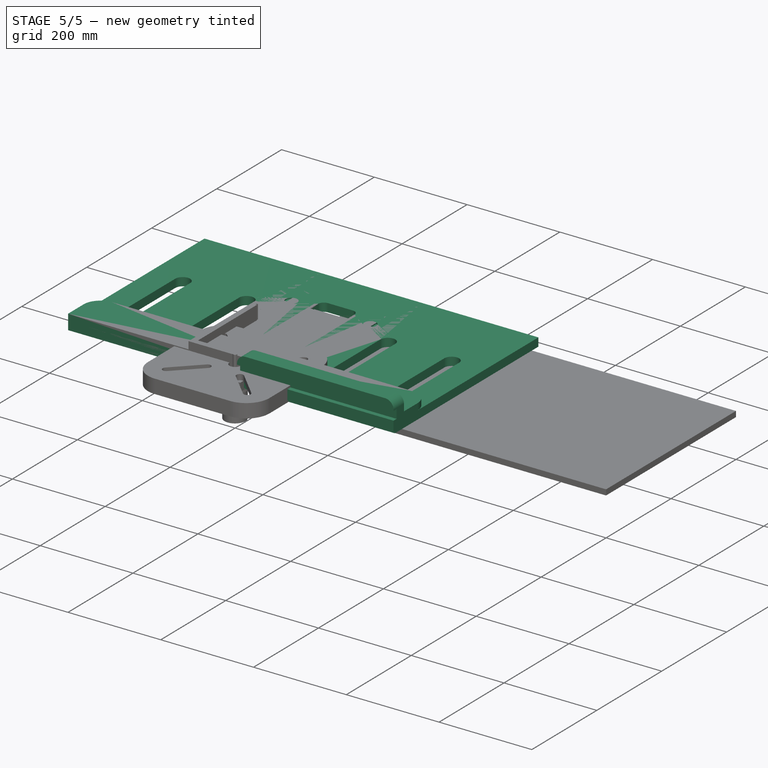
[diagram: stage 5 of 5 — iso view after this stage's code; geometry added in this stage tinted green]
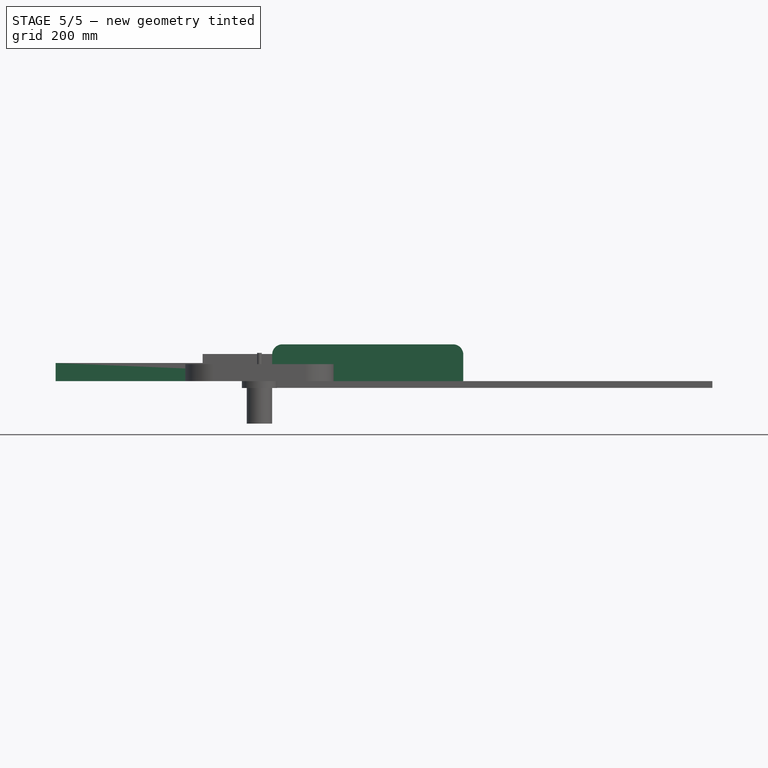
[diagram: stage 5 of 5 — front view after this stage's code; geometry added in this stage tinted green]
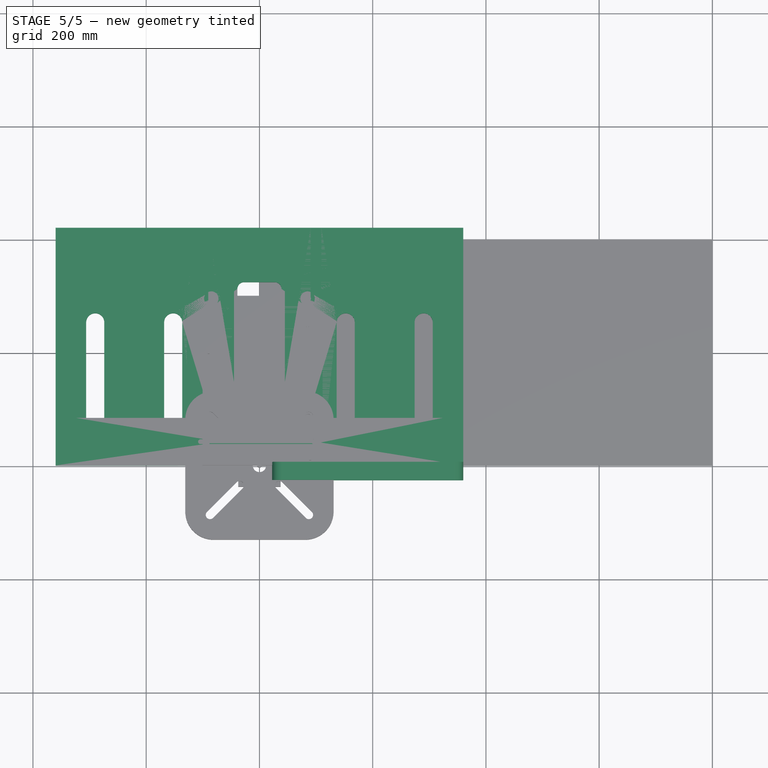
[diagram: stage 5 of 5 — top view after this stage's code; geometry added in this stage tinted green]
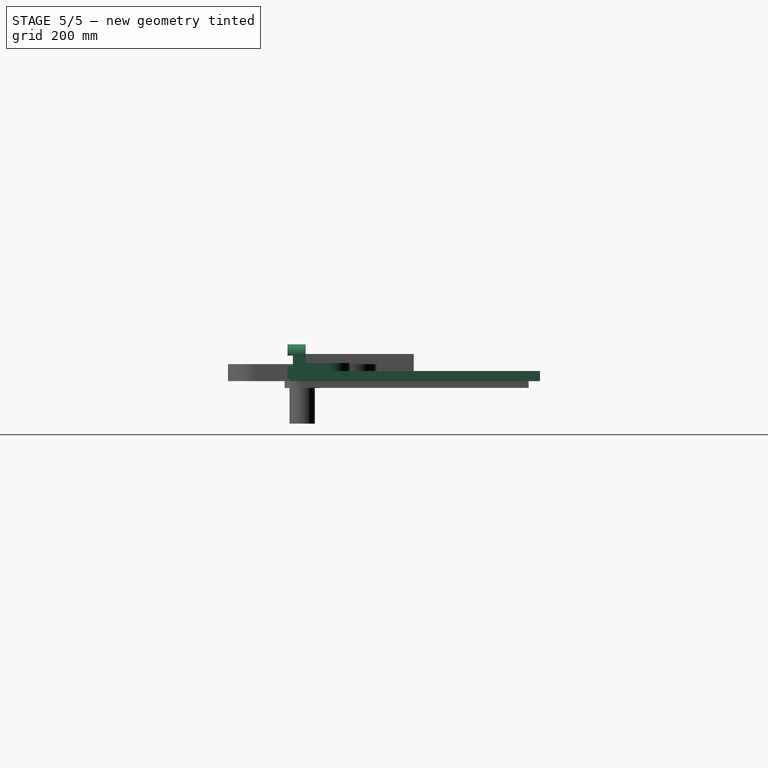
[diagram: stage 5 of 5 — right view after this stage's code; geometry added in this stage tinted green]
FEATURE [Spreadsheet::Sheet] Spreadsheet
  cells = A1='table_length; B1(table_length)==720 mm; D1='plywood_18; E1(ply_18)==18 mm; F1='iron_cast_table; G1(iron_cast_table)==262 mm; I1='tee nuts DIN1624; L1='via holes diameters; A2='table_depth; B2(table_depth)==420 mm; D2='plywood_12; E2(ply_12)==12 mm; F2='mounting_screws_distance; G2(mounting_screws_distance)==170 mm; I2='M8_D; J2(DIN1624_M8_D)==22.2 mm; L2='M8_D; M2(otw_przel_M8)==8.4 mm; D3='plywood_3; E3(ply_3)==3 mm; I3='M8_d1; J3(DIN1624_M8_d1)==9.1 mm; A4='table_radius; B4(table_radius)==6 mm; I4='M8_a; J4(DIN1624_M8_a)==1.2 mm; I5='M8_L1; J5(DIN1624_M8_L1)==11 mm; A6='t_track_slim_width; B6(t_track_width)==19 mm; C6='https://allegro.pl/oferta/t-track-slim-1220mm-profil-aluminiowy-t-zielony-10608302634?fromVariant=12640372726; A7='t_track_slim_depth; B7(t_track_depth)==9.5 mm; D7='fence_base_d; E7(fence_base_d)==32 mm; I7='M10_D; J7(DIN1624_M10_D)==25.5 mm; D8='fence_face_d; E8(fence_face_d)==32 mm; I8='M10_d1; J8(DIN1624_M10_d1)==12 mm; A9='clamp_slot_width; B9(clamp_slot_width)==32 mm; I9='M10_a; J9(DIN1624_M10_a)==1.2 mm; I10='M10_L1; J10(DIN1624_M10_L1)==13 mm; A11='insert_width; B11(insert_width)==90 mm; D11='base_width; E11(base_width)==G1; A12='insert_depth; B12(insert_depth)==200 mm; D12='base_depth; E12(base_depth)==E1 + 60 mm + E2 + E15 + 10 mm; I12='M12_D; J12(DIN1624_M12_D)==27 mm; D13='base_height; E13(base_height)==75 mm; I13='M12_d1; J13(DIN1624_M12_d1)==13.7 mm; I14='M12_a; J14(DIN1624_M12_a)==1.6 mm; D15='drawer_depth; E15(drawer_depth)==200 mm; I15='M12_L1; J15(DIN1624_M12_L1)==14.5 mm; D16='drawer_slide_width; E16==12.7 mm; D17='drawer_total_depth; E17(drawer_total_depth)==E15 + 6 mm; D18='drawer_total_width; E18(drawer_total_width)==E11 - 2 * E1 - 2 * E16; D19='drawer_total_height; E19(drawer_total_height)==E13 - E1 - 9 mm
FEATURE [Sketcher::SketchObject] Sketch
  AttachmentSupport = -> [XY_Plane]
  FullyConstrained = true
  MapMode = 5
  expr: .Constraints.table_radius_big = 6 * Spreadsheet.table_radius
  expr: Constraints[11] = .Constraints.table_radius_big
  expr: Constraints[12] = Spreadsheet.table_depth
  expr: Constraints[13] = Spreadsheet.table_length
  sketch-geometry (6):
    g0: LineSegment StartX=-360 StartY=420 StartZ=0 EndX=360 EndY=420 EndZ=0
    g1: LineSegment StartX=360 StartY=420 StartZ=0 EndX=360 EndY=36 EndZ=0
    g2: LineSegment StartX=324 StartY=3.695e-13 StartZ=0 EndX=-324 EndY=3.695e-13 EndZ=0
    g3: LineSegment StartX=-360 StartY=36 StartZ=0 EndX=-360 EndY=420 EndZ=0
    g4: ArcOfCircle CenterX=-324 CenterY=36 CenterZ=0 NormalX=0 NormalY=0 NormalZ=1 AngleXU=0 Radius=36 StartAngle=3.14159 EndAngle=4.71239
    g5: ArcOfCircle CenterX=324 CenterY=36 CenterZ=0 NormalX=0 NormalY=0 NormalZ=1 AngleXU=0 Radius=36 StartAngle=4.71239 EndAngle=6.28319
  constraints (15):
    c: Coincident(g0,g1)
    c: Coincident(g3,g0)
    c: Horizontal(g0)
    c: Horizontal(g2)
    c: Vertical(g1)
    c: Vertical(g3)
    c: Tangent(g3,g4) = 1.5708
    c: Tangent(g2,g4) = 1.5708
    c: Tangent(g2,g5) = 1.5708
    c: Tangent(g1,g5) = 1.5708
    c: Radius(g4) = 36  'table_radius_big'
    c: Radius(g5) = 36
    c: DistanceY(g2,g0) = 420
    c: DistanceX(g3,g1) = 720
    c: Symmetric(g2,g2,g-1)
FEATURE [PartDesign::Pad] Pad
  Direction = (0,0,1)
  Length = 18
  Length2 = 10
  Profile = -> Sketch
  ReferenceAxis = -> Sketch [N_Axis]
  Suppressed = false
  Type = 0
FEATURE [Sketcher::SketchObject] Sketch001
  AttachmentSupport = -> [Pad]
  FullyConstrained = true
  MapMode = 5
  Placement = pos=(0,0,18) rot=(0,0,1;0rad)
  expr: Constraints[12] = Spreadsheet.clamp_slot_width
  expr: Constraints[13] = Spreadsheet.clamp_slot_width
  expr: Constraints[14] = Spreadsheet.table_length / 2 - 70 mm
  expr: Constraints[15] = Spreadsheet.iron_cast_table / 2 + 2 / 3 * Spreadsheet.clamp_slot_width
  expr: Constraints[32] = Spreadsheet.clamp_slot_width
  expr: Constraints[33] = Spreadsheet.clamp_slot_width
  expr: Constraints[34] = Spreadsheet.iron_cast_table / 2 + 2 / 3 * Spreadsheet.clamp_slot_width
  expr: Constraints[35] = Spreadsheet.table_length / 2 - 70 mm
  expr: Constraints[52] = 2 * Spreadsheet.table_radius
  expr: Constraints[53] = 2 * Spreadsheet.table_radius
  expr: Constraints[54] = 2 * Spreadsheet.table_radius
  expr: Constraints[55] = 2 * Spreadsheet.table_radius
  expr: Constraints[56] = Spreadsheet.insert_depth - 2 * Spreadsheet.table_radius
  expr: Constraints[57] = Spreadsheet.insert_width - 2 * Spreadsheet.table_radius
  expr: Constraints[58] = (Spreadsheet.insert_width - 2 * Spreadsheet.table_radius) / 2
  expr: Constraints[59] = 130 mm + Spreadsheet.table_radius
  expr: Constraints[60] = Spreadsheet.DIN1624_M10_d1
  expr: Constraints[61] = Spreadsheet.mounting_screws_distance
  expr: Constraints[62] = Spreadsheet.mounting_screws_distance
  expr: Constraints[63] = Spreadsheet.mounting_screws_distance
  expr: Constraints[64] = Spreadsheet.mounting_screws_distance
  expr: Constraints[67] = Spreadsheet.mounting_screws_distance / 2
  expr: Constraints[68] = Spreadsheet.mounting_screws_distance / 2
  sketch-geometry (28):
    g0: ArcOfCircle CenterX=-290 CenterY=253 CenterZ=0 NormalX=0 NormalY=0 NormalZ=1 AngleXU=0 Radius=16 StartAngle=4e-16 EndAngle=3.14159
    g1: ArcOfCircle CenterX=-290 CenterY=73 CenterZ=0 NormalX=0 NormalY=0 NormalZ=1 AngleXU=0 Radius=16 StartAngle=3.14159 EndAngle=6.28319
    g2: LineSegment StartX=-306 StartY=253 StartZ=0 EndX=-306 EndY=73 EndZ=0
    g3: LineSegment StartX=-274 StartY=73 StartZ=0 EndX=-274 EndY=253 EndZ=0
    g4: ArcOfCircle CenterX=-152.333 CenterY=253 CenterZ=0 NormalX=0 NormalY=0 NormalZ=1 AngleXU=0 Radius=16 StartAngle=1e-16 EndAngle=3.14159
    g5: ArcOfCircle CenterX=-152.333 CenterY=73 CenterZ=0 NormalX=0 NormalY=0 NormalZ=1 AngleXU=0 Radius=16 StartAngle=3.14159 EndAngle=6.28319
    g6: LineSegment StartX=-168.333 StartY=253 StartZ=0 EndX=-168.333 EndY=73 EndZ=0
    g7: LineSegment StartX=-136.333 StartY=73 StartZ=0 EndX=-136.333 EndY=253 EndZ=0
    g8: ArcOfCircle CenterX=290 CenterY=253 CenterZ=0 NormalX=0 NormalY=0 NormalZ=1 AngleXU=0 Radius=16 StartAngle=5e-16 EndAngle=3.14159
    g9: ArcOfCircle CenterX=290 CenterY=73 CenterZ=0 NormalX=0 NormalY=0 NormalZ=1 AngleXU=0 Radius=16 StartAngle=3.14159 EndAngle=6.28319
    g10: LineSegment StartX=306 StartY=253 StartZ=0 EndX=306 EndY=73 EndZ=0
    g11: LineSegment StartX=274 StartY=73 StartZ=0 EndX=274 EndY=253 EndZ=0
    g12: ArcOfCircle CenterX=152.333 CenterY=253 CenterZ=0 NormalX=0 NormalY=0 NormalZ=1 AngleXU=0 Radius=16 StartAngle=5e-16 EndAngle=3.14159
    g13: ArcOfCircle CenterX=152.333 CenterY=73 CenterZ=0 NormalX=0 NormalY=0 NormalZ=1 AngleXU=0 Radius=16 StartAngle=3.14159 EndAngle=6.28319
    g14: LineSegment StartX=168.333 StartY=253 StartZ=0 EndX=168.333 EndY=73 EndZ=0
    g15: LineSegment StartX=136.333 StartY=73 StartZ=0 EndX=136.333 EndY=253 EndZ=0
    g16: LineSegment StartX=-27 StartY=324 StartZ=0 EndX=27 EndY=324 EndZ=0
    g17: LineSegment StartX=39 StartY=312 StartZ=0 EndX=39 EndY=148 EndZ=0
    g18: LineSegment StartX=27 StartY=136 StartZ=0 EndX=-27 EndY=136 EndZ=0
    g19: LineSegment StartX=-39 StartY=148 StartZ=0 EndX=-39 EndY=312 EndZ=0
    g20: ArcOfCircle CenterX=-27 CenterY=312 CenterZ=0 NormalX=0 NormalY=0 NormalZ=1 AngleXU=0 Radius=12 StartAngle=1.5708 EndAngle=3.14159
    g21: ArcOfCircle CenterX=27 CenterY=312 CenterZ=0 NormalX=0 NormalY=0 NormalZ=1 AngleXU=0 Radius=12 StartAngle=3.37e-14 EndAngle=1.5708
    g22: ArcOfCircle CenterX=-27 CenterY=148 CenterZ=0 NormalX=0 NormalY=0 NormalZ=1 AngleXU=0 Radius=12 StartAngle=3.14159 EndAngle=4.71239
    g23: ArcOfCircle CenterX=27 CenterY=148 CenterZ=0 NormalX=0 NormalY=0 NormalZ=1 AngleXU=0 Radius=12 StartAngle=4.71239 EndAngle=6.28319
    g24: Circle CenterX=-85 CenterY=125 CenterZ=0 NormalX=0 NormalY=0 NormalZ=1 AngleXU=0 Radius=6
    g25: Circle CenterX=-85 CenterY=295 CenterZ=0 NormalX=0 NormalY=0 NormalZ=1 AngleXU=0 Radius=6
    g26: Circle CenterX=85 CenterY=295 CenterZ=0 NormalX=0 NormalY=0 NormalZ=1 AngleXU=0 Radius=6
    g27: Circle CenterX=85 CenterY=125 CenterZ=0 NormalX=0 NormalY=0 NormalZ=1 AngleXU=0 Radius=6
  constraints (72):
    c: Tangent(g0,g2) = -1.5708
    c: Tangent(g2,g1) = -1.5708
    c: Tangent(g1,g3) = -1.5708
    c: Tangent(g3,g0) = -1.5708
    c: Equal(g0,g1)
    c: Vertical(g2)
    c: Tangent(g4,g6) = -1.5708
    c: Tangent(g6,g5) = -1.5708
    c: Tangent(g5,g7) = -1.5708
    c: Tangent(g7,g4) = -1.5708
    c: Equal(g4,g5)
    c: Vertical(g6)
    c: Diameter(g0) = 32
    c: Diameter(g4) = 32
    c: DistanceX(g1,g-1) = 290
    c: DistanceX(g5,g-1) = 152.333
    c: DistanceY(g-1,g1) = 73
    c: DistanceY(g-1,g5) = 73
    c: DistanceY(g1,g0) = 180
    c: DistanceY(g5,g4) = 180
    c: Tangent(g8,g10) = 1.5708
    c: Tangent(g10,g9) = 1.5708
    c: Tangent(g9,g11) = 1.5708
    c: Tangent(g11,g8) = 1.5708
    c: Equal(g8,g9)
    c: Vertical(g10)
    c: Tangent(g12,g14) = 1.5708
    c: Tangent(g14,g13) = 1.5708
    c: Tangent(g13,g15) = 1.5708
    c: Tangent(g15,g12) = 1.5708
    c: Equal(g12,g13)
    c: Vertical(g14)
    c: Diameter(g8) = 32
    c: Diameter(g12) = 32
    c: DistanceX(g-1,g13) = 152.333
    c: DistanceX(g-1,g9) = 290
    c: DistanceY(g-1,g13) = 73
    c: DistanceY(g-1,g9) = 73
    c: DistanceY(g13,g12) = 180
    c: DistanceY(g9,g8) = 180
    c: Horizontal(g16)
    c: Horizontal(g18)
    c: Vertical(g17)
    c: Vertical(g19)
    c: Tangent(g19,g20) = 1.5708
    c: Tangent(g16,g20) = 1.5708
    c: Tangent(g16,g21) = 1.5708
    c: Tangent(g17,g21) = 1.5708
    c: Tangent(g19,g22) = 1.5708
    c: Tangent(g18,g22) = 1.5708
    c: Tangent(g18,g23) = 1.5708
    c: Tangent(g17,g23) = 1.5708
    c: Radius(g20) = 12
    c: Radius(g21) = 12
    c: Radius(g23) = 12
    c: Radius(g22) = 12
    c: DistanceY(g18,g16) = 188
    c: DistanceX(g19,g17) = 78
    c: DistanceX(g19,g-1) = 39
    c: DistanceY(g-1,g18) = 136
    c: Diameter(g25) = 12
    c: DistanceX(g24,g27) = 170
    c: DistanceX(g25,g26) = 170
    c: DistanceY(g24,g25) = 170
    c: DistanceY(g27,g26) = 170
    c: DistanceY(g-1,g27) = 125
    c: DistanceY(g-1,g24) = 125
    c: DistanceX(g24,g-1) = 85
    c: DistanceX(g25,g-1) = 85
    c: Equal(g25,g26)
    c: Equal(g26,g27)
    c: Equal(g27,g24)
FEATURE [PartDesign::Pocket] Pocket
  BaseFeature = -> Pad
  Direction = (0,0,-1)
  Length = 18
  Length2 = 5
  Profile = -> Sketch001
  ReferenceAxis = -> Sketch001 [N_Axis]
  Suppressed = false
  Type = 0
FEATURE [Sketcher::SketchObject] Sketch002
  AttachmentSupport = -> [XY_Plane001]
  FullyConstrained = true
  MapMode = 5
  expr: Constraints[10] = 6 * Spreadsheet.table_radius
  expr: Constraints[11] = 6 * Spreadsheet.table_radius
  expr: Constraints[12] = Spreadsheet.table_length
  expr: Constraints[13] = Spreadsheet.table_depth
  sketch-geometry (6):
    g0: LineSegment StartX=-360 StartY=420 StartZ=0 EndX=360 EndY=420 EndZ=0
    g1: LineSegment StartX=360 StartY=420 StartZ=0 EndX=360 EndY=36 EndZ=0
    g2: LineSegment StartX=324 StartY=3.695e-13 StartZ=0 EndX=-324 EndY=3.695e-13 EndZ=0
    g3: LineSegment StartX=-360 StartY=36 StartZ=0 EndX=-360 EndY=420 EndZ=0
    g4: ArcOfCircle CenterX=-324 CenterY=36 CenterZ=0 NormalX=0 NormalY=0 NormalZ=1 AngleXU=0 Radius=36 StartAngle=3.14159 EndAngle=4.71239
    g5: ArcOfCircle CenterX=324 CenterY=36 CenterZ=0 NormalX=0 NormalY=0 NormalZ=1 AngleXU=0 Radius=36 StartAngle=4.71239 EndAngle=6.28319
  constraints (15):
    c: Coincident(g0,g1)
    c: Coincident(g3,g0)
    c: Horizontal(g0)
    c: Horizontal(g2)
    c: Vertical(g1)
    c: Vertical(g3)
    c: Tangent(g3,g4) = 1.5708
    c: Tangent(g2,g4) = 1.5708
    c: Tangent(g2,g5) = 1.5708
    c: Tangent(g1,g5) = 1.5708
    c: Radius(g4) = 36
    c: Radius(g5) = 36
    c: DistanceX(g3,g1) = 720
    c: DistanceY(g2,g0) = 420
    c: Symmetric(g2,g2,g-1)
FEATURE [PartDesign::Pad] Pad001
  Direction = (0,0,1)
  Length = 18
  Length2 = 10
  Profile = -> Sketch002
  ReferenceAxis = -> Sketch002 [N_Axis]
  Suppressed = false
  Type = 0
  expr: Length = Spreadsheet.ply_18
FEATURE [Sketcher::SketchObject] Sketch003  label="slots"
  AttachmentSupport = -> [Pad001]
  FullyConstrained = true
  MapMode = 5
  Placement = pos=(0,0,18) rot=(0,0,1;0rad)
  sketch-geometry (24):
    g0: ArcOfCircle CenterX=-290 CenterY=253 CenterZ=0 NormalX=0 NormalY=0 NormalZ=1 AngleXU=0 Radius=16 StartAngle=2e-16 EndAngle=3.14159
    g1: ArcOfCircle CenterX=-290 CenterY=73 CenterZ=0 NormalX=0 NormalY=0 NormalZ=1 AngleXU=0 Radius=16 StartAngle=3.14159 EndAngle=6.28319
    g2: LineSegment StartX=-306 StartY=253 StartZ=0 EndX=-306 EndY=73 EndZ=0
    g3: LineSegment StartX=-274 StartY=73 StartZ=0 EndX=-274 EndY=253 EndZ=0
    g4: ArcOfCircle CenterX=-152.333 CenterY=253 CenterZ=0 NormalX=0 NormalY=0 NormalZ=1 AngleXU=0 Radius=16 StartAngle=1.1e-15 EndAngle=3.14159
    g5: ArcOfCircle CenterX=-152.333 CenterY=73 CenterZ=0 NormalX=0 NormalY=0 NormalZ=1 AngleXU=0 Radius=16 StartAngle=3.14159 EndAngle=6.28319
    g6: LineSegment StartX=-168.333 StartY=253 StartZ=0 EndX=-168.333 EndY=73 EndZ=0
    g7: LineSegment StartX=-136.333 StartY=73 StartZ=0 EndX=-136.333 EndY=253 EndZ=0
    g8: ArcOfCircle CenterX=290 CenterY=253 CenterZ=0 NormalX=0 NormalY=0 NormalZ=1 AngleXU=0 Radius=16 StartAngle=-9e-16 EndAngle=3.14159
    g9: ArcOfCircle CenterX=290 CenterY=73 CenterZ=0 NormalX=0 NormalY=0 NormalZ=1 AngleXU=0 Radius=16 StartAngle=3.14159 EndAngle=6.28319
    g10: LineSegment StartX=306 StartY=253 StartZ=0 EndX=306 EndY=73 EndZ=0
    g11: LineSegment StartX=274 StartY=73 StartZ=0 EndX=274 EndY=253 EndZ=0
    g12: ArcOfCircle CenterX=152.333 CenterY=253 CenterZ=0 NormalX=0 NormalY=0 NormalZ=1 AngleXU=0 Radius=16 StartAngle=5e-16 EndAngle=3.14159
    g13: ArcOfCircle CenterX=152.333 CenterY=73 CenterZ=0 NormalX=0 NormalY=0 NormalZ=1 AngleXU=0 Radius=16 StartAngle=3.14159 EndAngle=6.28319
    g14: LineSegment StartX=168.333 StartY=253 StartZ=0 EndX=168.333 EndY=73 EndZ=0
    g15: LineSegment StartX=136.333 StartY=73 StartZ=0 EndX=136.333 EndY=253 EndZ=0
    g16: LineSegment StartX=-27 StartY=324 StartZ=0 EndX=27 EndY=324 EndZ=0
    g17: LineSegment StartX=39 StartY=312 StartZ=0 EndX=39 EndY=148 EndZ=0
    g18: LineSegment StartX=27 StartY=136 StartZ=0 EndX=-27 EndY=136 EndZ=0
    g19: LineSegment StartX=-39 StartY=148 StartZ=0 EndX=-39 EndY=312 EndZ=0
    g20: ArcOfCircle CenterX=-27 CenterY=312 CenterZ=0 NormalX=0 NormalY=0 NormalZ=1 AngleXU=0 Radius=12 StartAngle=1.5708 EndAngle=3.14159
    g21: ArcOfCircle CenterX=27 CenterY=312 CenterZ=0 NormalX=0 NormalY=0 NormalZ=1 AngleXU=0 Radius=12 StartAngle=3.58e-14 EndAngle=1.5708
    g22: ArcOfCircle CenterX=27 CenterY=148 CenterZ=0 NormalX=0 NormalY=0 NormalZ=1 AngleXU=0 Radius=12 StartAngle=4.71239 EndAngle=6.28319
    g23: ArcOfCircle CenterX=-27 CenterY=148 CenterZ=0 NormalX=0 NormalY=0 NormalZ=1 AngleXU=0 Radius=12 StartAngle=3.14159 EndAngle=4.71239
  constraints (60):
    c: Tangent(g0,g2) = -1.5708
    c: Tangent(g2,g1) = -1.5708
    c: Tangent(g1,g3) = -1.5708
    c: Tangent(g3,g0) = -1.5708
    c: Equal(g0,g1)
    c: Vertical(g2)
    c: Tangent(g4,g6) = -1.5708
    c: Tangent(g6,g5) = -1.5708
    c: Tangent(g5,g7) = -1.5708
    c: Tangent(g7,g4) = -1.5708
    c: Equal(g4,g5)
    c: Vertical(g6)
    c: Diameter(g0) = 32
    c: Diameter(g4) = 32
    c: DistanceX(g1,g-1) = 290  '1st_slot'
    c: DistanceX(g5,g-1) = 152.333  '2nd_slot'
    c: DistanceY(g-1,g1) = 73
    c: DistanceY(g-1,g5) = 73
    c: DistanceY(g1,g0) = 180
    c: DistanceY(g5,g4) = 180
    c: Tangent(g8,g10) = 1.5708
    c: Tangent(g10,g9) = 1.5708
    c: Tangent(g9,g11) = 1.5708
    c: Tangent(g11,g8) = 1.5708
    c: Equal(g8,g9)
    c: Vertical(g10)
    c: Tangent(g12,g14) = 1.5708
    c: Tangent(g14,g13) = 1.5708
    c: Tangent(g13,g15) = 1.5708
    c: Tangent(g15,g12) = 1.5708
    c: Equal(g12,g13)
    c: Vertical(g14)
    c: Diameter(g8) = 32
    c: Diameter(g12) = 32
    c: DistanceX(g-1,g13) = 152.333
    c: DistanceX(g-1,g9) = 290
    c: DistanceY(g-1,g13) = 73
    c: DistanceY(g-1,g9) = 73
    c: DistanceY(g13,g12) = 180
    c: DistanceY(g9,g8) = 180
    c: Horizontal(g16)
    c: Horizontal(g18)
    c: Vertical(g17)
    c: Vertical(g19)
    c: Tangent(g16,g20) = 1.5708
    c: Tangent(g19,g20) = 1.5708
    c: Tangent(g16,g21) = 1.5708
    c: Tangent(g17,g21) = 1.5708
    c: Tangent(g17,g22) = 1.5708
    c: Tangent(g18,g22) = 1.5708
    c: Tangent(g18,g23) = 1.5708
    c: Tangent(g19,g23) = 1.5708
    c: Radius(g20) = 12
    c: Radius(g21) = 12
    c: Radius(g22) = 12
    c: Radius(g23) = 12
    c: DistanceX(g19,g17) = 78
    c: DistanceY(g-1,g18) = 136
    c: DistanceY(g18,g16) = 188
    c: DistanceX(g19,g-1) = 39
FEATURE [PartDesign::Pocket] Pocket001
  BaseFeature = -> Pad001
  Direction = (0,0,-1)
  Length = 18
  Length2 = 5
  Profile = -> Sketch003
  ReferenceAxis = -> Sketch003 [N_Axis]
  Suppressed = false
  Type = 0
  expr: Length = Spreadsheet.ply_18
FEATURE [Sketcher::SketchObject] Sketch004  label="t_tracks_sk"
  AttachmentSupport = -> [Pocket001]
  FullyConstrained = true
  MapMode = 5
  Placement = pos=(0,0,18) rot=(0,0,1;0rad)
  expr: .Constraints.t_track_distance = 100 mm - Spreadsheet.t_track_width / 2
  expr: Constraints[17] = Spreadsheet.t_track_width
  expr: Constraints[19] = Spreadsheet.table_depth
  sketch-geometry (8):
    g0: LineSegment StartX=-109.5 StartY=420 StartZ=0 EndX=-90.5 EndY=420 EndZ=0
    g1: LineSegment StartX=-90.5 StartY=420 StartZ=0 EndX=-90.5 EndY=0 EndZ=0
    g2: LineSegment StartX=-90.5 StartY=0 StartZ=0 EndX=-109.5 EndY=0 EndZ=0
    g3: LineSegment StartX=-109.5 StartY=0 StartZ=0 EndX=-109.5 EndY=420 EndZ=0
    g4: LineSegment StartX=109.5 StartY=420 StartZ=0 EndX=90.5 EndY=420 EndZ=0
    g5: LineSegment StartX=90.5 StartY=420 StartZ=0 EndX=90.5 EndY=0 EndZ=0
    g6: LineSegment StartX=90.5 StartY=0 StartZ=0 EndX=109.5 EndY=0 EndZ=0
    g7: LineSegment StartX=109.5 StartY=0 StartZ=0 EndX=109.5 EndY=420 EndZ=0
  constraints (23):
    c: Coincident(g0,g1)
    c: Coincident(g1,g2)
    c: Coincident(g2,g3)
    c: Coincident(g3,g0)
    c: Horizontal(g0)
    c: Horizontal(g2)
    c: Vertical(g1)
    c: Vertical(g3)
    c: Coincident(g4,g5)
    c: Coincident(g5,g6)
    c: Coincident(g6,g7)
    c: Coincident(g7,g4)
    c: Horizontal(g4)
    c: Horizontal(g6)
    c: Vertical(g5)
    c: Vertical(g7)
    c: Equal(g1,g7)
    c: DistanceX(g0,g0) = 19
    c: Equal(g0,g4)
    c: DistanceY(g3,g3) = 420
    c: DistanceX(g1,g-1) = 90.5  't_track_distance'
    c: DistanceY(g1,g-1) = 0
    c: Symmetric(g1,g5,g-1)
FEATURE [PartDesign::Pocket] Pocket002
  BaseFeature = -> Pocket001
  Direction = (0,0,-1)
  Length = 9.5
  Length2 = 5
  Profile = -> Sketch004
  ReferenceAxis = -> Sketch004 [N_Axis]
  Suppressed = false
  Type = 0
  expr: Length = Spreadsheet.t_track_depth
FEATURE [Sketcher::SketchObject] Sketch006
  AttachmentSupport = -> [Pocket]
  ExternalGeometry = -> [Pocket]
  FullyConstrained = true
  MapMode = 5
  Placement = pos=(0,0,18) rot=(0,0,1;0rad)
  expr: Constraints[5] = Spreadsheet.DIN1624_M10_D
  sketch-geometry (4):
    g0: Circle CenterX=-85 CenterY=295 CenterZ=0 NormalX=0 NormalY=0 NormalZ=1 AngleXU=0 Radius=12.75
    g1: Circle CenterX=85 CenterY=295 CenterZ=0 NormalX=0 NormalY=0 NormalZ=1 AngleXU=0 Radius=12.75
    g2: Circle CenterX=-85 CenterY=125 CenterZ=0 NormalX=0 NormalY=0 NormalZ=1 AngleXU=0 Radius=12.75
    g3: Circle CenterX=85 CenterY=125 CenterZ=0 NormalX=0 NormalY=0 NormalZ=1 AngleXU=0 Radius=12.75
  constraints (8):
    c: Coincident(g0,g-4)
    c: Coincident(g1,g-5)
    c: Equal(g2,g0)
    c: Equal(g0,g1)
    c: Equal(g1,g3)
    c: Diameter(g2) = 25.5
    c: Coincident(g2,g-6)
    c: Coincident(g3,g-3)
FEATURE [PartDesign::Pocket] Pocket003
  BaseFeature = -> Pocket
  Direction = (0,0,-1)
  Length = 2.4
  Length2 = 5
  Profile = -> Sketch006
  ReferenceAxis = -> Sketch006 [N_Axis]
  Suppressed = false
  Type = 0
  expr: Length = 2 * Spreadsheet.DIN1624_M10_a
FEATURE [Sketcher::SketchObject] Sketch007
  AttachmentSupport = -> [Pocket002]
  ExternalGeometry = -> [Pocket002]
  FullyConstrained = true
  MapMode = 5
  Placement = pos=(0,0,18) rot=(0,0,1;0rad)
  expr: Constraints[12] = Spreadsheet.insert_width
  sketch-geometry (8):
    g0: LineSegment StartX=-27 StartY=330 StartZ=0 EndX=27 EndY=330 EndZ=0
    g1: LineSegment StartX=45 StartY=312 StartZ=0 EndX=45 EndY=148 EndZ=0
    g2: LineSegment StartX=27 StartY=130 StartZ=0 EndX=-27 EndY=130 EndZ=0
    g3: LineSegment StartX=-45 StartY=148 StartZ=0 EndX=-45 EndY=312 EndZ=0
    g4: ArcOfCircle CenterX=-27 CenterY=312 CenterZ=0 NormalX=0 NormalY=0 NormalZ=1 AngleXU=0 Radius=18 StartAngle=1.5708 EndAngle=3.14159
    g5: ArcOfCircle CenterX=27 CenterY=312 CenterZ=0 NormalX=0 NormalY=0 NormalZ=1 AngleXU=0 Radius=18 StartAngle=9e-16 EndAngle=1.5708
    g6: ArcOfCircle CenterX=27 CenterY=148 CenterZ=0 NormalX=0 NormalY=0 NormalZ=1 AngleXU=0 Radius=18 StartAngle=4.71239 EndAngle=6.28319
    g7: ArcOfCircle CenterX=-27 CenterY=148 CenterZ=0 NormalX=0 NormalY=0 NormalZ=1 AngleXU=0 Radius=18 StartAngle=3.14159 EndAngle=4.71239
  constraints (18):
    c: Horizontal(g0)
    c: Horizontal(g2)
    c: Vertical(g1)
    c: Vertical(g3)
    c: Tangent(g0,g4) = 1.5708
    c: Tangent(g3,g4) = 1.5708
    c: Tangent(g0,g5) = 1.5708
    c: Tangent(g1,g5) = 1.5708
    c: Tangent(g1,g6) = 1.5708
    c: Tangent(g2,g6) = 1.5708
    c: Tangent(g2,g7) = 1.5708
    c: Tangent(g3,g7) = 1.5708
    c: DistanceX(g3,g1) = 90
    c: Equal(g7,g6)
    c: Equal(g6,g4)
    c: Equal(g4,g5)
    c: Coincident(g7,g-5)
    c: Coincident(g5,g-3)
FEATURE [PartDesign::Pocket] Pocket004
  BaseFeature = -> Pocket002
  Direction = (0,0,-1)
  Length = 12
  Length2 = 5
  Profile = -> Sketch007
  ReferenceAxis = -> Sketch007 [N_Axis]
  Suppressed = false
  Type = 0
  expr: Length = Spreadsheet.ply_12
FEATURE [Sketcher::SketchObject] Sketch009  label="base_pad"
  AttachmentSupport = -> [XY_Plane008]
  FullyConstrained = true
  MapMode = 5
  expr: .Constraints.fence_base_depth = 14 * Spreadsheet.table_radius
  expr: Constraints[10] = 6 * Spreadsheet.table_radius
  expr: Constraints[12] = Spreadsheet.table_length
  sketch-geometry (6):
    g0: LineSegment StartX=-324 StartY=84 StartZ=0 EndX=324 EndY=84 EndZ=0
    g1: LineSegment StartX=360 StartY=48 StartZ=0 EndX=360 EndY=0 EndZ=0
    g2: LineSegment StartX=360 StartY=0 StartZ=0 EndX=-360 EndY=0 EndZ=0
    g3: LineSegment StartX=-360 StartY=0 StartZ=0 EndX=-360 EndY=48 EndZ=0
    g4: ArcOfCircle CenterX=-324 CenterY=48 CenterZ=0 NormalX=0 NormalY=0 NormalZ=1 AngleXU=0 Radius=36 StartAngle=1.5708 EndAngle=3.14159
    g5: ArcOfCircle CenterX=324 CenterY=48 CenterZ=0 NormalX=0 NormalY=0 NormalZ=1 AngleXU=0 Radius=36 StartAngle=0 EndAngle=1.5708
  constraints (15):
    c: Coincident(g1,g2)
    c: Coincident(g2,g3)
    c: Horizontal(g0)
    c: Horizontal(g2)
    c: Vertical(g1)
    c: Vertical(g3)
    c: Tangent(g3,g4) = 1.5708
    c: Tangent(g0,g4) = 1.5708
    c: Tangent(g0,g5) = 1.5708
    c: Tangent(g1,g5) = 1.5708
    c: Radius(g4) = 36
    c: Equal(g4,g5)
    c: DistanceX(g2,g1) = 720
    c: DistanceY(g2,g0) = 84  'fence_base_depth'
    c: Symmetric(g2,g1,g-1)
FEATURE [PartDesign::Pad] Pad004
  Direction = (0,0,1)
  Length = 32
  Length2 = 10
  Profile = -> Sketch009
  ReferenceAxis = -> Sketch009 [N_Axis]
  Suppressed = false
  Type = 0
  expr: Length = Spreadsheet.fence_base_d
FEATURE [Sketcher::SketchObject] Sketch010
  AttachmentSupport = -> [Pad004]
  FullyConstrained = true
  MapMode = 5
  Placement = pos=(0,0,32) rot=(0,0,1;0rad)
  expr: .Constraints.slot_length = Spreadsheet.otw_przel_M8
  expr: Constraints[6] = Spreadsheet.otw_przel_M8
  expr: Constraints[7] = 1 / 2 * <<base_pad>>.Constraints.fence_base_depth
  expr: Constraints[9] = Sketch004.Constraints.t_track_distance - .Constraints.slot_length / 2 + 9.5 mm
  sketch-geometry (4):
    g0: ArcOfCircle CenterX=-104.2 CenterY=42 CenterZ=0 NormalX=0 NormalY=0 NormalZ=1 AngleXU=0 Radius=4.2 StartAngle=1.5708 EndAngle=4.71239
    g1: ArcOfCircle CenterX=-95.8 CenterY=42 CenterZ=0 NormalX=0 NormalY=0 NormalZ=1 AngleXU=0 Radius=4.2 StartAngle=4.71239 EndAngle=7.85398
    g2: LineSegment StartX=-104.2 StartY=37.8 StartZ=0 EndX=-95.8 EndY=37.8 EndZ=0
    g3: LineSegment StartX=-95.8 StartY=46.2 StartZ=0 EndX=-104.2 EndY=46.2 EndZ=0
  constraints (10):
    c: Tangent(g0,g2) = -1.5708
    c: Tangent(g2,g1) = -1.5708
    c: Tangent(g1,g3) = -1.5708
    c: Tangent(g3,g0) = -1.5708
    c: Equal(g0,g1)
    c: Horizontal(g2)
    c: Diameter(g1) = 8.4
    c: DistanceY(g-1,g1) = 42
    c: DistanceX(g0,g1) = 8.4  'slot_length'
    c: DistanceX(g1,g-1) = 95.8
FEATURE [PartDesign::Pocket] Pocket005
  BaseFeature = -> Pad004
  Direction = (0,0,-1)
  Length = 32
  Length2 = 5
  Profile = -> Sketch010
  ReferenceAxis = -> Sketch010 [N_Axis]
  Suppressed = false
  Type = 0
  expr: Length = Spreadsheet.fence_base_d
FEATURE [PartDesign::Mirrored] Mirrored
  BaseFeature = -> Pocket005
  MirrorPlane = -> Sketch010 [V_Axis]
  Originals = -> [Pocket005]
  Suppressed = false
FEATURE [Sketcher::SketchObject] Sketch011
  AttachmentSupport = -> [Mirrored]
  FullyConstrained = true
  MapMode = 5
  Placement = pos=(0,0,0) rot=(1,0,0;3.14159rad)
  expr: Constraints[12] = Spreadsheet.table_radius
  expr: Constraints[13] = Spreadsheet.table_radius
  expr: Constraints[14] = 3 / 4 * <<base_pad>>.Constraints.fence_base_depth
  sketch-geometry (6):
    g0: LineSegment StartX=-22.5 StartY=0 StartZ=0 EndX=22.5 EndY=0 EndZ=0
    g1: LineSegment StartX=22.5 StartY=0 StartZ=0 EndX=22.5 EndY=-57 EndZ=0
    g2: LineSegment StartX=16.5 StartY=-63 StartZ=0 EndX=-16.5 EndY=-63 EndZ=0
    g3: LineSegment StartX=-22.5 StartY=-57 StartZ=0 EndX=-22.5 EndY=0 EndZ=0
    g4: ArcOfCircle CenterX=16.5 CenterY=-57 CenterZ=0 NormalX=0 NormalY=0 NormalZ=1 AngleXU=0 Radius=6 StartAngle=4.71239 EndAngle=6.28319
    g5: ArcOfCircle CenterX=-16.5 CenterY=-57 CenterZ=0 NormalX=0 NormalY=0 NormalZ=1 AngleXU=0 Radius=6 StartAngle=3.14159 EndAngle=4.71239
  constraints (15):
    c: Coincident(g0,g1)
    c: Coincident(g3,g0)
    c: Horizontal(g0)
    c: Horizontal(g2)
    c: Vertical(g1)
    c: Vertical(g3)
    c: DistanceX(g0,g0) = 45  'fence_opening'
    c: Symmetric(g0,g0,g-1)
    c: Tangent(g2,g4) = 1.5708
    c: Tangent(g1,g4) = 1.5708
    c: Tangent(g2,g5) = 1.5708
    c: Tangent(g3,g5) = 1.5708
    c: Radius(g5) = 6
    c: Radius(g4) = 6
    c: DistanceY(g2,g0) = 63
FEATURE [PartDesign::Pocket] Pocket006
  BaseFeature = -> Mirrored
  Direction = (0,0,1)
  Length = 16
  Length2 = 5
  Profile = -> Sketch011
  ReferenceAxis = -> Sketch011 [N_Axis]
  Suppressed = false
  Type = 0
  expr: Length = Spreadsheet.fence_base_d / 2
FEATURE [Sketcher::SketchObject] Sketch014
  AttachmentSupport = -> [Pocket007]
  FullyConstrained = true
  MapMode = 5
  Placement = pos=(0,0,32) rot=(0,0,1;0rad)
  expr: Constraints[10] = Sketch012.Constraints.fence_length
  sketch-geometry (4):
    g0: LineSegment StartX=0 StartY=4 StartZ=0 EndX=337.5 EndY=4 EndZ=0
    g1: LineSegment StartX=337.5 StartY=4 StartZ=0 EndX=337.5 EndY=0 EndZ=0
    g2: LineSegment StartX=337.5 StartY=0 StartZ=0 EndX=0 EndY=0 EndZ=0
    g3: LineSegment StartX=0 StartY=0 StartZ=0 EndX=0 EndY=4 EndZ=0
  constraints (11):
    c: Coincident(g0,g1)
    c: Coincident(g1,g2)
    c: Coincident(g2,g3)
    c: Coincident(g3,g0)
    c: Horizontal(g0)
    c: Horizontal(g2)
    c: Vertical(g1)
    c: Vertical(g3)
    c: DistanceY(g1,g1) = 4
    c: Coincident(g2,g-1)
    c: DistanceX(g2,g2) = 337.5
FEATURE [PartDesign::Pocket] Pocket008
  BaseFeature = -> Pocket007
  Direction = (0,0,-1)
  Length = 4
  Length2 = 5
  Profile = -> Sketch014
  ReferenceAxis = -> Sketch014 [N_Axis]
  Suppressed = false
  Type = 0
FEATURE [Sketcher::SketchObject] Sketch015
  AttachmentSupport = -> [Pocket008]
  FullyConstrained = true
  MapMode = 5
  Placement = pos=(0,0,0) rot=(1,0,0;3.14159rad)
  expr: Constraints[8] = Spreadsheet.fence_base_d
  expr: Constraints[9] = Sketch012.Constraints.fence_length
  sketch-geometry (4):
    g0: LineSegment StartX=0 StartY=0 StartZ=0 EndX=337.5 EndY=0 EndZ=0
    g1: LineSegment StartX=337.5 StartY=0 StartZ=0 EndX=337.5 EndY=-32 EndZ=0
    g2: LineSegment StartX=337.5 StartY=-32 StartZ=0 EndX=0 EndY=-32 EndZ=0
    g3: LineSegment StartX=0 StartY=-32 StartZ=0 EndX=0 EndY=0 EndZ=0
  constraints (11):
    c: Coincident(g0,g1)
    c: Coincident(g1,g2)
    c: Coincident(g2,g3)
    c: Coincident(g3,g0)
    c: Horizontal(g0)
    c: Horizontal(g2)
    c: Vertical(g1)
    c: Vertical(g3)
    c: DistanceY(g1,g1) = 32
    c: DistanceX(g0,g0) = 337.5
    c: Coincident(g-1,g0)
FEATURE [PartDesign::Pocket] Pocket009
  BaseFeature = -> Pocket008
  Direction = (0,0,1)
  Length = 6
  Length2 = 5
  Profile = -> Sketch015
  ReferenceAxis = -> Sketch015 [N_Axis]
  Suppressed = false
  Type = 0
FEATURE [PartDesign::Body] Body004  label="fence_face_r"
  Group = -> [Sketch012,Pad005,Sketch013,Pocket007,Sketch014,Pocket008,Sketch015,Pocket009]
  Origin = -> Origin004
  Placement = pos=(22.5,6,0) rot=(1,0,0;1.5708rad)
  Tip = -> Pocket009
FEATURE [PartDesign::FeatureBase] Clone
  BaseFeature = -> Body004
  Placement = pos=(22.5,6,0) rot=(1,0,0;1.5708rad)
  Suppressed = false
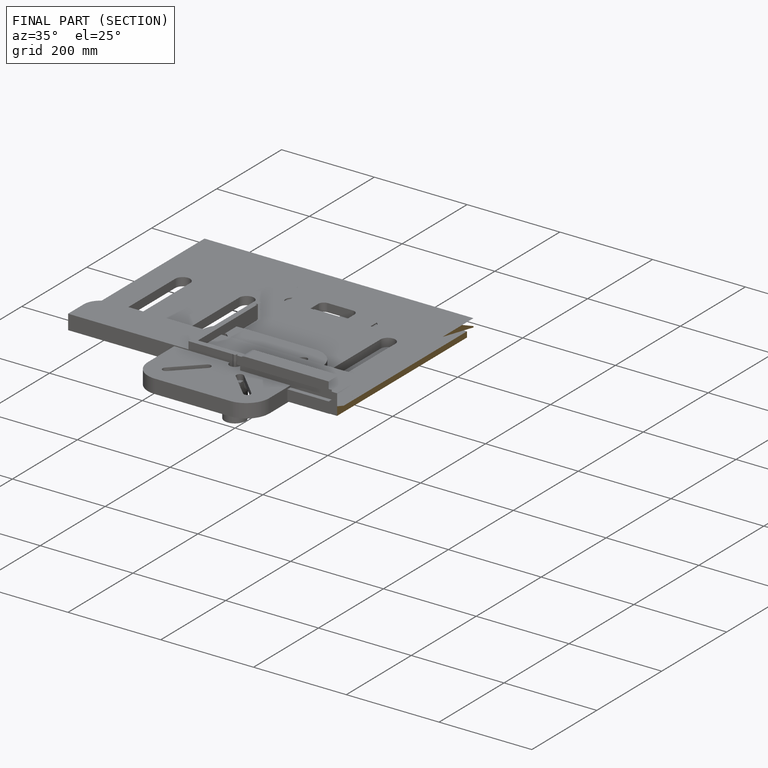
[diagram: finished part — half-section view (interior)]
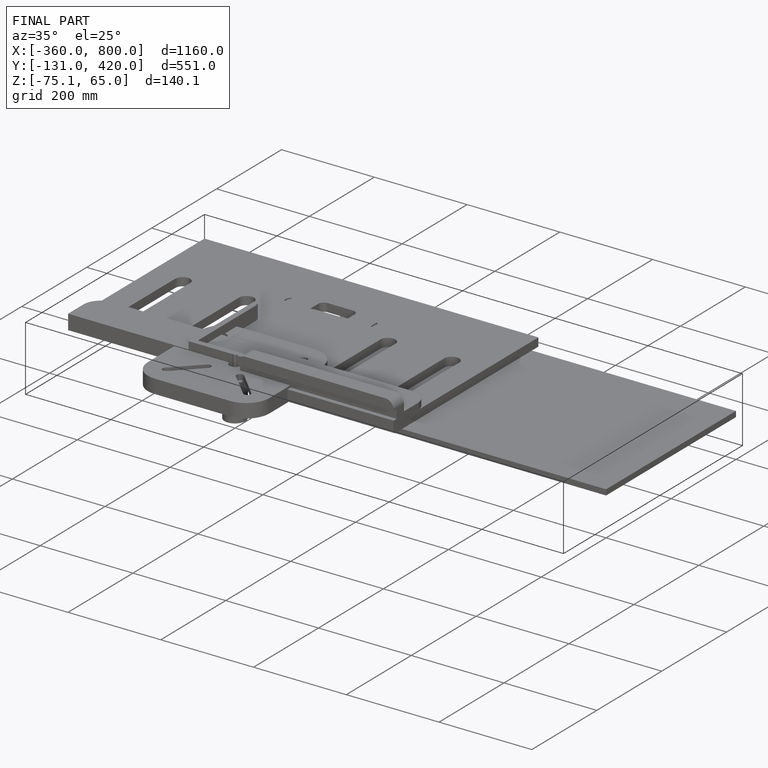
[diagram: finished part — iso view with bounding-box wireframe]
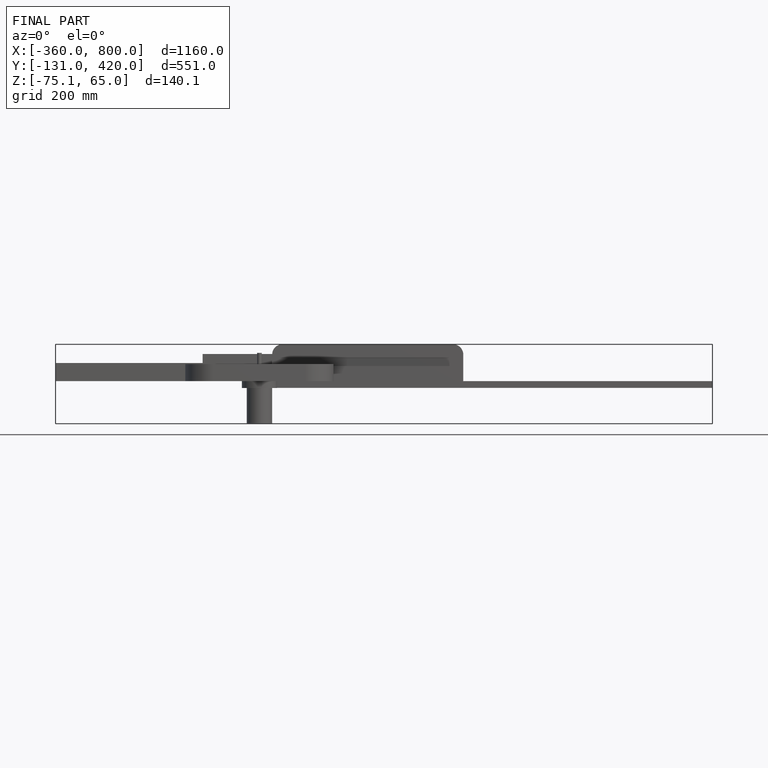
[diagram: finished part — front view with bounding-box wireframe]
